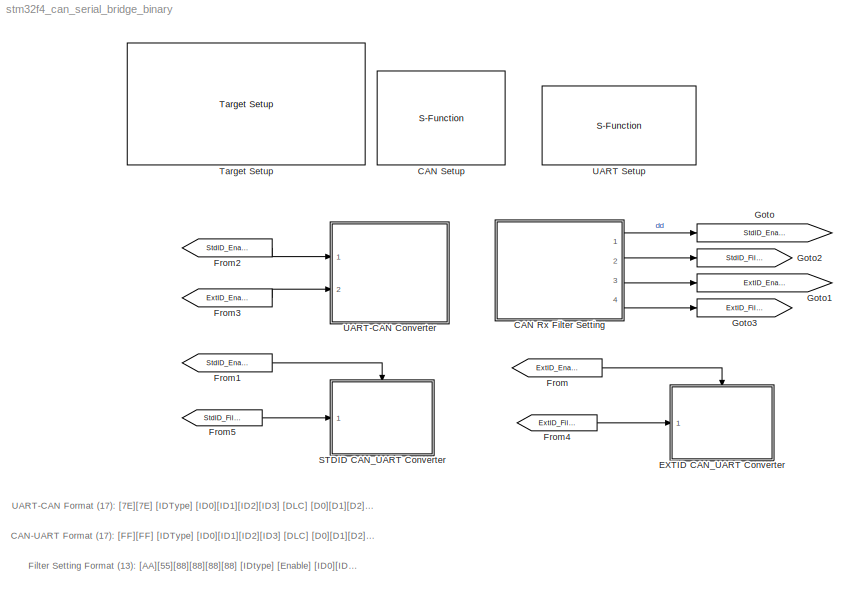
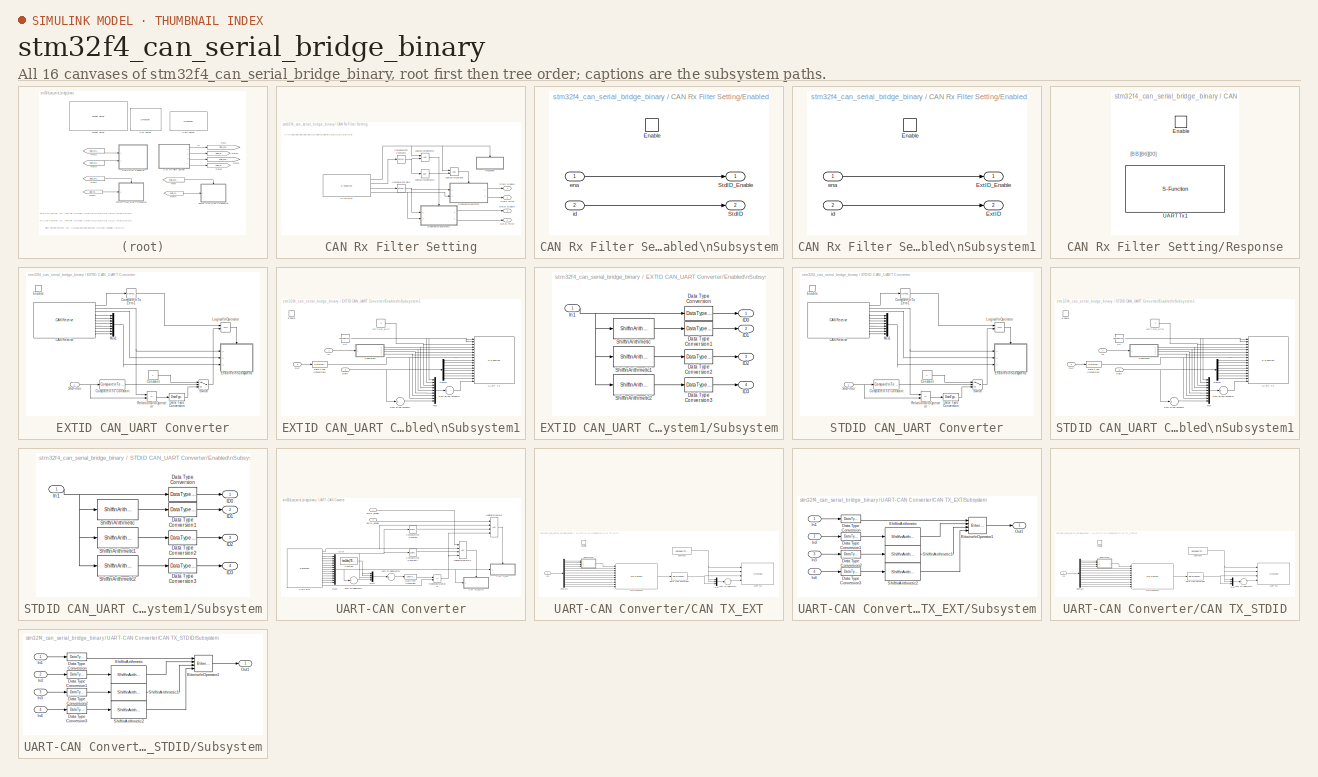
[diagram: thumbnail index - all 16 canvases of the model, root first then tree order]
MODEL stm32f4_can_serial_bridge_binary
KIND model
CONFIG PreLoadFcn = waijung.modelPreload; % Required for working with Waijung Blockset. Do not remove.
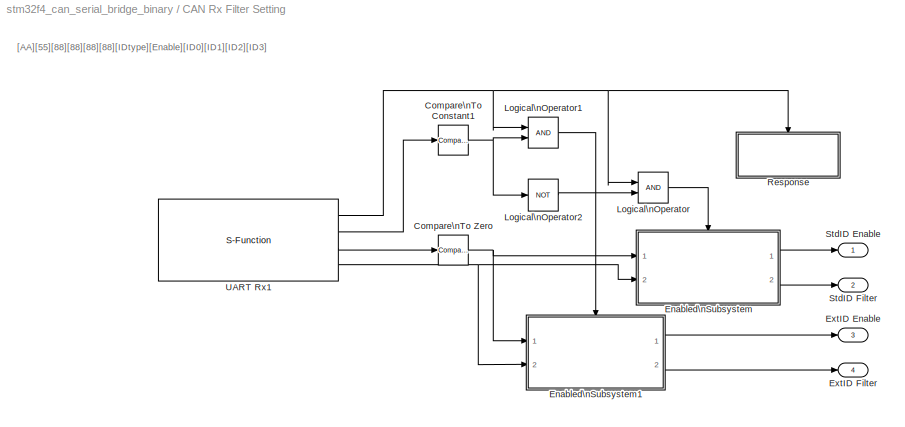
BLOCK [SubSystem] CAN Rx Filter Setting
  FunctionWithSeparateData = off
  MaskHideContents = off
  MinAlgLoopOccurrences = off
  Opaque = off
  Ports = [0, 4]
  PropExecContextOutsideSubsystem = off
  RTWSystemCode = Auto
  RequestExecContextInheritance = off
BLOCK [Reference] CAN Rx Filter Setting/Compare\nTo Constant1  REF=simulink/Logic and Bit\nOperations/Compare\nTo Constant
  FunctionWithSeparateData = off
  LogicOutDataTypeMode = uint8
  Ports = [1, 1]
  RTWMemSecDataConstants = Inherit from model
  RTWMemSecDataInternal = Inherit from model
  RTWMemSecDataParameters = Inherit from model
  RTWMemSecFuncExecute = Inherit from model
  RTWMemSecFuncInitTerm = Inherit from model
  ShowPortLabels = FromPortIcon
  SourceBlock = simulink/Logic and Bit\nOperations/Compare\nTo Constant
  SourceType = Compare To Constant
  SystemSampleTime = -1
  ZeroCross = off
  const = 0
  relop = ==
BLOCK [Reference] CAN Rx Filter Setting/Compare\nTo Zero  REF=simulink/Logic and Bit\nOperations/Compare\nTo Zero
  FunctionWithSeparateData = off
  LogicOutDataTypeMode = uint8
  Ports = [1, 1]
  RTWMemSecDataConstants = Inherit from model
  RTWMemSecDataInternal = Inherit from model
  RTWMemSecDataParameters = Inherit from model
  RTWMemSecFuncExecute = Inherit from model
  RTWMemSecFuncInitTerm = Inherit from model
  ShowPortLabels = FromPortIcon
  SourceBlock = simulink/Logic and Bit\nOperations/Compare\nTo Zero
  SourceType = Compare To Zero
  SystemSampleTime = -1
  ZeroCross = off
  relop = ~=
BLOCK [SubSystem] CAN Rx Filter Setting/Enabled\nSubsystem
  FunctionWithSeparateData = off
  MaskHideContents = off
  MinAlgLoopOccurrences = off
  Opaque = off
  Ports = [2, 2, 1]
  PropExecContextOutsideSubsystem = off
  RTWSystemCode = Auto
  RequestExecContextInheritance = off
  TreatAsAtomicUnit = on
BLOCK [EnablePort] CAN Rx Filter Setting/Enabled\nSubsystem/Enable
  Ports = []
BLOCK [Outport] CAN Rx Filter Setting/Enabled\nSubsystem/StdID
  IconDisplay = Port number
  InitialOutput = 2^32-1
  OutDataType = fixdt(1, 16)
  OutScaling = 2^0
  Port = 2
BLOCK [Outport] CAN Rx Filter Setting/Enabled\nSubsystem/StdID_Enable
  IconDisplay = Port number
  InitialOutput = 0
  OutDataType = fixdt(1, 16)
  OutScaling = 2^0
BLOCK [Inport] CAN Rx Filter Setting/Enabled\nSubsystem/ena
  IconDisplay = Port number
  OutDataType = fixdt(1, 16)
  OutScaling = 2^0
BLOCK [Inport] CAN Rx Filter Setting/Enabled\nSubsystem/id
  IconDisplay = Port number
  OutDataType = fixdt(1, 16)
  OutScaling = 2^0
  Port = 2
BLOCK [SubSystem] CAN Rx Filter Setting/Enabled\nSubsystem1
  FunctionWithSeparateData = off
  MaskHideContents = off
  MinAlgLoopOccurrences = off
  Opaque = off
  Ports = [2, 2, 1]
  PropExecContextOutsideSubsystem = off
  RTWSystemCode = Auto
  RequestExecContextInheritance = off
  TreatAsAtomicUnit = on
BLOCK [EnablePort] CAN Rx Filter Setting/Enabled\nSubsystem1/Enable
  Ports = []
BLOCK [Outport] CAN Rx Filter Setting/Enabled\nSubsystem1/ExtID
  IconDisplay = Port number
  InitialOutput = 2^32-1
  OutDataType = fixdt(1, 16)
  OutScaling = 2^0
  Port = 2
BLOCK [Outport] CAN Rx Filter Setting/Enabled\nSubsystem1/ExtID_Enable
  IconDisplay = Port number
  InitialOutput = 0
  OutDataType = fixdt(1, 16)
  OutScaling = 2^0
BLOCK [Inport] CAN Rx Filter Setting/Enabled\nSubsystem1/ena
  IconDisplay = Port number
  OutDataType = fixdt(1, 16)
  OutScaling = 2^0
BLOCK [Inport] CAN Rx Filter Setting/Enabled\nSubsystem1/id
  IconDisplay = Port number
  OutDataType = fixdt(1, 16)
  OutScaling = 2^0
  Port = 2
BLOCK [Outport] CAN Rx Filter Setting/ExtID Enable
  IconDisplay = Port number
  OutDataType = fixdt(1, 16)
  OutScaling = 2^0
  Port = 3
BLOCK [Outport] CAN Rx Filter Setting/ExtID Filter
  IconDisplay = Port number
  OutDataType = fixdt(1, 16)
  OutScaling = 2^0
  Port = 4
BLOCK [Logic] CAN Rx Filter Setting/Logical\nOperator
  AllPortsSameDT = off
  LogicDataType = fixdt(0, 8)
  OutDataTypeMode = boolean
  OutDataTypeStr = boolean
  Ports = [2, 1]
BLOCK [Logic] CAN Rx Filter Setting/Logical\nOperator1
  AllPortsSameDT = off
  LogicDataType = fixdt(0, 8)
  OutDataTypeMode = boolean
  OutDataTypeStr = boolean
  Ports = [2, 1]
BLOCK [Logic] CAN Rx Filter Setting/Logical\nOperator2
  AllPortsSameDT = off
  LogicDataType = fixdt(0, 8)
  Operator = NOT
  OutDataTypeMode = boolean
  OutDataTypeStr = boolean
  Ports = [1, 1]
BLOCK [SubSystem] CAN Rx Filter Setting/Response
  FunctionWithSeparateData = off
  MaskHideContents = off
  MinAlgLoopOccurrences = off
  Opaque = off
  Ports = [0, 0, 1]
  PropExecContextOutsideSubsystem = off
  RTWSystemCode = Auto
  RequestExecContextInheritance = off
  TreatAsAtomicUnit = on
BLOCK [EnablePort] CAN Rx Filter Setting/Response/Enable
  Ports = []
BLOCK [S-Function] CAN Rx Filter Setting/Response/UART Tx1
  EnableBusSupport = off
  FunctionName = stm32f4_usart
  MaskCallbackString = stm32f4_usart_callback('configuration');|stm32f4_usart_callback('uartmodule');|stm32f4_usart_callback('baudrate');||||||stm32f4_usart_callback('flowcontrol');|||stm32f4_usart_callback('advanceoptions');|||stm32f4_usart_callback('transfer');|stm32f4_usart_callback('packetmode');|stm32f4_usart_callback('binheader');|stm32f4_usart_callback('binterminator');|stm32f4_usart_callback('porttype');|stm32f4...<+572ch>  <repeated x8 — deduplicated; at blocks: UART Tx1, UART Rx1, UART Tx, UART Setup>
  MaskDescription = Data type for Ascii format\n%u, %i, %d, %o, %x: uint32\n%e, %g, %f: single\n%c: int8
  MaskDisplay = text(0.95, 0.5, 'Module: USART3_Tx\\nPacket: Binary\\nTransfer: Blocking\\nTs (sec): 0.01','ver','middle','hor','right');
  MaskEnableString = on,on,on,on,on,on,on,on,on,off,off,on,on,on,on,on,on,on,on,on,on,on,on,on,on,on,on,on,on,on,on,on,on,on,on,on,on,on,on,off,off,on,on
  MaskHelp = web(fullfile(waijungdocroot,'stm32f4_usart_tx.htm'), '-browser')
  MaskIconFrame = on
  MaskIconOpaque = on
  MaskIconRotate = none
  MaskIconUnits = normalized
  MaskInitialization = stm32f4_usart_callback('init');
  MaskPortRotate = default
  MaskPromptString = Configuration|UART Module|Baud rate (bps)|Data bits|Parity|Stop bit|Tx Pin|Rx Pin|Hardware flow control|HW Flow control, CTS Pin|HW Flow control, RTS Pin|Advance options|Rx buffer size (bytes)|Tx buffer size (bytes)|Transfer|Packet mode|Binary header (example: '7E 7E')|Binary terminator (example: '03 03')|Number of data port, type DOUBLE|Number of data port, type SINGLE|Number of data port, type I...<+457ch>  <repeated x8 — deduplicated; at blocks: UART Tx1, UART Rx1, UART Tx, UART Setup>
  MaskSelfModifiable = on
  MaskStyleString = popup(Setup|Tx|Rx),popup(1|2|3|4|5|6),edit,popup(8),popup(No|Odd|Even),popup(0.5|1|1.5|2),popup(Not used|A9|B6),popup(Not used|A10|B7),popup(None|RTS|CTS|RTS/CTS),popup(Not used|A11),popup(Not used|A12),checkbox,popup(16|32|64|128|256|512|1024|2048),popup(16|32|64|128|256|512|1024|2048),popup(Blocking|Non-Blocking),popup(Ascii|Binary|String Buffer),edit,edit,edit,edit,edit,edit,edit,edit,edit,edit...<+244ch>  <repeated x7 — deduplicated; at blocks: UART Tx1, UART Rx1, UART Tx>
  MaskTabNameString = ,,,,,,,,,,,,,,,,,,,,,,,,,,,,,,,,,,,,,,,,,,
  MaskToolTipString = on,on,on,on,on,on,on,on,on,on,on,on,on,on,on,on,on,on,on,on,on,on,on,on,on,on,on,on,on,on,on,on,on,on,on,on,on,on,on,on,on,on,on
  MaskTunableValueString = off,off,off,off,off,off,off,off,off,off,off,off,off,off,off,off,off,off,off,off,off,off,off,off,off,off,off,off,off,off,off,off,off,off,off,off,off,off,off,off,off,off,off
  MaskType = stm32f4_usart
  MaskValueString = Tx|3|115200|8|No|1|Not used|Not used|None|Not used|Not used|off|512|512|Blocking|Binary|'BB 66 00'|''|0|0|0|0|0|0|0|0|'value=%d,%f'|CRLF (0x0D 0x0A - \"<path>")|CRLF (0x0D 0x0A - \"<path>")|<empty>||[0 ]|[0]|[3 187  102    0]|[0 ]|0|'value=%d,%f\\r\\n'|[2 13 10]|-1|0.01|CANRxFilterSettingResponseUARTTx1|[ \"dummy\", \"0\", \"*\", \"*\", \"0\", \"*\", \"*\", \"0\", \"*\", \"*\", \"0\", \"*\", \"*...<+135ch>
  MaskVarAliasString = ,,,,,,,,,,,,,,,,,,,,,,,,,,,,,,,,,,,,,,,,,,
  MaskVariables = configuration=&1;uartmodule=&2;baudrate=@3;databits=@4;parity=&5;stopbit=&6;remaptxpin=&7;remaprxpin=&8;flowcontrol=&9;remapctspin=&10;remaprtspin=&11;advanceoptions=@12;rxbuffersize=@13;txbuffersize=@14;transfer=&15;packetmode=&16;binheader=&17;binterminator=&18;porttype_double=@19;porttype_single=@20;porttype_int8=@21;porttype_uint8=@22;porttype_int16=@23;porttype_uint16=@24;porttype_int32=@25;p...<+306ch>  <repeated x8 — deduplicated; at blocks: UART Tx1, UART Rx1, UART Tx, UART Setup>
  MaskVisibilityString = off,on,off,off,off,off,off,off,off,off,off,off,off,off,on,on,on,on,on,on,on,on,on,on,on,on,off,off,off,off,off,off,off,off,off,off,off,off,on,off,off,off,off
  Parameters = configuration,uartmodule,transfer,baudrate,inputtype,outputtype,confstr,binheaderarray,binterminatorarray,asciiheader,asciiterminator,bindatalength,packetmode,varname,sampletime,sampletimestr,blockid  <repeated x8 — deduplicated; at blocks: UART Tx1, UART Rx1, UART Tx, UART Setup>
  Ports = []
  Priority = 1
BLOCK [Outport] CAN Rx Filter Setting/StdID Enable
  IconDisplay = Port number
  OutDataType = fixdt(1, 16)
  OutScaling = 2^0
BLOCK [Outport] CAN Rx Filter Setting/StdID Filter
  IconDisplay = Port number
  OutDataType = fixdt(1, 16)
  OutScaling = 2^0
  Port = 2
BLOCK [S-Function] CAN Rx Filter Setting/UART Rx1
  EnableBusSupport = off
  FunctionName = stm32f4_usart
  MaskDescription = Data type for Ascii format\n%u, %i, %d, %o, %x: uint32\n%e, %g, %f: single\n%c: int8
  MaskDisplay = text(0.05, 0.5, 'Module: USART3_Rx\\nPacket: Binary\\nTransfer: Non-Blocking\\nTs (sec): 0.01','ver','middle','hor','left'); port_label('output', 1,'READY'); port_label('output', 2,'uint8'); port_label('output', 3,'uint8'); port_label('output', 4,'uint32');
  MaskEnableString = on,on,on,on,on,on,on,on,on,off,off,on,on,on,on,on,on,on,on,on,on,on,on,on,on,on,on,on,on,on,on,on,on,on,on,on,on,on,on,off,off,on,on
  MaskHelp = web(fullfile(waijungdocroot,'stm32f4_usart_rx.htm'), '-browser')
  MaskIconFrame = on
  MaskIconOpaque = on
  MaskIconRotate = none
  MaskIconUnits = normalized
  MaskInitialization = stm32f4_usart_callback('init');
  MaskPortRotate = default
  MaskSelfModifiable = on
  MaskTabNameString = ,,,,,,,,,,,,,,,,,,,,,,,,,,,,,,,,,,,,,,,,,,
  MaskToolTipString = on,on,on,on,on,on,on,on,on,on,on,on,on,on,on,on,on,on,on,on,on,on,on,on,on,on,on,on,on,on,on,on,on,on,on,on,on,on,on,on,on,on,on
  MaskTunableValueString = off,off,off,off,off,off,off,off,off,off,off,off,off,off,off,off,off,off,off,off,off,off,off,off,off,off,off,off,off,off,off,off,off,off,off,off,off,off,off,off,off,off,off
  MaskType = stm32f4_usart
  MaskValueString = Rx|3|115200|8|No|1|Not used|Not used|None|Not used|Not used|off|512|512|Non-Blocking|Binary|'AA 55 88 88 88 88'|''|0|0|0|2|0|0|0|1|'value=%d,%f'|CRLF (0x0D 0x0A - \"<path>")|LF (0x0A - \"\\n\")|<empty>||[0]|[4 3  3 3 7]|[6 170   85  136  136  136  136]|[0 ]|6|'value=%d,%f\\r\\n'|[2 13 10]|-1|0.01|CANRxFilterSettingUARTRx1|[ \"dummy\", \"0\", \"*\", \"*\", \"0\", \"*\", \"*\", \"0\", \"*\", \"*\",...<+153ch>
  MaskVarAliasString = ,,,,,,,,,,,,,,,,,,,,,,,,,,,,,,,,,,,,,,,,,,
  MaskVisibilityString = off,on,off,off,off,off,off,off,off,off,off,off,off,off,on,on,on,on,on,on,on,on,on,on,on,on,off,off,off,off,off,off,off,off,off,off,off,off,on,off,off,off,off
  Ports = [0, 4]
  Priority = 1
BLOCK [S-Function] CAN Setup
  EnableBusSupport = off
  FunctionName = stm32f4_can
  MaskCallbackString = |stm32f4_can_callback('canmodule');|stm32f4_can_callback('advance');|stm32f4_can_callback('bitrate_select');||stm32f4_can_callback('timingconf');|stm32f4_can_callback('timingconf');|stm32f4_can_callback('timingconf');|stm32f4_can_callback('timingconf');|stm32f4_can_callback('timingconf');|||stm32f4_can_callback('remaptxpin');|stm32f4_can_callback('remaprxpin');|stm32f4_can_callback('sampletime');|...<+83ch>
  MaskDescription = This block setups CAN Module.\n\nAuto Re-transmission,\n - Enable: The CAN hardware will automatically retransmit the message until it has been \nsuccessfully transmitted according to the CAN standard.\n - Disable: A message will be transmitted only once, independently of the transmission result \n(successful, error or arbitration lost).\n
  MaskDisplay = text(0.5, 0.5, 'CAN1_Setup\\nSpeed (bps): 250000\\nTx/Rx pin: B9/B8','ver','middle','hor','center');
  MaskEnableString = on,on,on,on,on,on,on,on,on,off,off,on,on,on,on,off,off,on,on,on,on,on,on,on,on,on,on,on,on
  MaskHelp = web(fullfile(waijungdocroot,'stm32f4_can_setup.htm'), '-browser')
  MaskIconFrame = on
  MaskIconOpaque = on
  MaskIconRotate = none
  MaskIconUnits = normalized
  MaskInitialization = stm32f4_can_callback('init');
  MaskPortRotate = default
  MaskPromptString = Configuration|CAN Module|Advance configuration|Baud rate (bps)|Resync Jump Width (SJW)|Bit segment 1 (BS1) + PROP_SEG|Bit segment 2 (BS2)|Adjust|Baud rate prescaler (BRP)|Baud rate (bps)|Time Quantum (Second), tq|Auto Re-transmission|CAN Tx pin|CAN Rx pin|Sample time (sec)|Compiled sample time (sec) in string|BlockID|Input port|Input port label|Output port|Output port label|Compatibility (Reserved...<+125ch>
  MaskSelfModifiable = on
  MaskStyleString = popup(Setup),popup(1|2),checkbox,popup(125000|250000|500000|1000000),popup(1tq|2tq|3tq|4tq),popup(1tq|2tq|3tq|4tq|5tq|6tq|7tq|8tq|9tq|10tq|11tq|12tq|13tq|14tq|15tq|16tq),popup(1tq|2tq|3tq|4tq|5tq|6tq|7tq|8tq),popup(Prescaler|Baudrate),edit,edit,edit,popup(Enable|Disable),popup(Not used|A12|B9|D1|H13),popup(Not used|A11|B8|D0|I9),edit,edit,edit,edit,edit,edit,edit,edit,edit,edit,edit,edit,edit,edit...<+5ch>
  MaskTabNameString = ,,,,,,,,,,,,,,,,,,,,,,,,,,,,
  MaskToolTipString = on,on,on,on,on,on,on,on,on,on,on,on,on,on,on,on,on,on,on,on,on,on,on,on,on,on,on,on,on
  MaskTunableValueString = off,off,off,off,off,off,off,off,off,off,off,off,off,off,off,off,off,off,off,off,off,off,off,off,off,off,off,off,off
  MaskType = stm32f4_can
  MaskValueString = Setup|1|off|250000|1tq|14tq|6tq|Prescaler|8|250000|1.9048e-007|Enable|B9|B8|inf|0.01|CANSetup|[]|{}|[]|{}|0|[\"250000\",\"8\",\"B\",\"9\",\"B\",\"8\",\"1tq\",\"14tq\",\"6tq\",\"DISABLE\"]|8|B|9|B|8|1
  MaskVarAliasString = ,,,,,,,,,,,,,,,,,,,,,,,,,,,,
  MaskVariables = conf=&1;canmodule=&2;advance=&3;bitrate_select=&4;sjw=&5;bs1=&6;bs2=&7;timingconf=&8;brp=@9;bitrate=@10;tq=&11;autoretransmission=&12;remaptxpin=&13;remaprxpin=&14;sampletime=@15;sampletimestr=&16;blockid=&17;inputarray=@18;inputlabelarray=&19;outputarray=@20;outputlabelarray=&21;compat=&22;confstr=&23;presc=&24;txportstr=&25;txpinstr=&26;rxportstr=&27;rxpinstr=&28;lastmodule=&29;
  MaskVisibilityString = off,on,on,on,off,off,off,off,off,off,off,on,on,on,on,off,off,off,off,off,off,off,off,off,off,off,off,off,off
  Parameters = conf,canmodule,0,inputarray,outputarray,'','',confstr,sampletime,sampletimestr,blockid
  Ports = []
BLOCK [SubSystem] EXTID CAN_UART Converter
  FunctionWithSeparateData = off
  MaskHideContents = off
  MinAlgLoopOccurrences = off
  Opaque = off
  Ports = [1, 0, 1]
  PropExecContextOutsideSubsystem = off
  RTWSystemCode = Auto
  RequestExecContextInheritance = off
BLOCK [Reference] EXTID CAN_UART Converter/CAN Receive  REF=stm32f4_canbus_lib/CAN Receive
  Ports = [0, 11]
  SourceBlock = stm32f4_canbus_lib/CAN Receive
  SourceType = stm32f4_can
  blockid = EXTIDCAN_UARTConverterCANReceive
  buffersize = 8
  canmodule = 1
  compat = 0
  conf = Rx
  confstr = [\"Extended\",\"Mask\",\"0\",\"0\",\"on\",\"uint8\",\"uint8\",\"uint8\",\"uint8\",\"uint8\",\"uint8\",\"uint8\",\"uint8\",\"8\",\"0\",\"4\",\"0\",\"4\"]
  data0type = uint8
  data1type = uint8
  data2type = uint8
  data3type = uint8
  data4type = uint8
  data5type = uint8
  data6type = uint8
  data7type = uint8
  datatype = single
  enableisr = off
  filtertype = Mask
  id = 0
  idmask = 0
  idtype = Extended
  inputarray = []
  inputlabelarray = {}
  outputarray = [ 5, 7, 3, 3, 3, 3, 3, 3, 3, 3, 3]
  outputlabelarray = { 'Msg Pending','ID','DLC', 'D0 (uint8)', 'D1 (uint8)', 'D2 (uint8)', 'D3 (uint8)', 'D4 (uint8)', 'D5 (uint8)', 'D6 (uint8)', 'D7 (uint8)' }
  sampletime = inf
  sampletimestr = 0.01
  usedlc = on
BLOCK [Reference] EXTID CAN_UART Converter/Compare\nTo Constant  REF=simulink/Logic and Bit\nOperations/Compare\nTo Constant
  FunctionWithSeparateData = off
  LogicOutDataTypeMode = uint8
  Ports = [1, 1]
  RTWMemSecDataConstants = Inherit from model
  RTWMemSecDataInternal = Inherit from model
  RTWMemSecDataParameters = Inherit from model
  RTWMemSecFuncExecute = Inherit from model
  RTWMemSecFuncInitTerm = Inherit from model
  ShowPortLabels = FromPortIcon
  SourceBlock = simulink/Logic and Bit\nOperations/Compare\nTo Constant
  SourceType = Compare To Constant
  SystemSampleTime = -1
  ZeroCross = off
  const = 2^32-1
  relop = ==
BLOCK [Reference] EXTID CAN_UART Converter/Compare\nTo Zero1  REF=simulink/Logic and Bit\nOperations/Compare\nTo Zero
  FunctionWithSeparateData = off
  LogicOutDataTypeMode = uint8
  Ports = [1, 1]
  RTWMemSecDataConstants = Inherit from model
  RTWMemSecDataInternal = Inherit from model
  RTWMemSecDataParameters = Inherit from model
  RTWMemSecFuncExecute = Inherit from model
  RTWMemSecFuncInitTerm = Inherit from model
  ShowPortLabels = FromPortIcon
  SourceBlock = simulink/Logic and Bit\nOperations/Compare\nTo Zero
  SourceType = Compare To Zero
  SystemSampleTime = -1
  ZeroCross = off
  relop = ~=
BLOCK [Constant] EXTID CAN_UART Converter/Constant
  OutDataType = fixdt(1, 16)
  OutDataTypeMode = uint8
  OutDataTypeStr = uint8
  OutScaling = 2^0
BLOCK [DataTypeConversion] EXTID CAN_UART Converter/Data Type Conversion
  OutDataType = fixdt(1, 16)
  OutDataTypeMode = uint8
  OutDataTypeStr = uint8
  OutScaling = 2^0
  RndMeth = Floor
  SaturateOnIntegerOverflow = off
BLOCK [EnablePort] EXTID CAN_UART Converter/Enable
  Ports = []
BLOCK [SubSystem] EXTID CAN_UART Converter/Enabled\nSubsystem1
  FunctionWithSeparateData = off
  MaskHideContents = off
  MinAlgLoopOccurrences = off
  Opaque = off
  Ports = [3, 0, 1]
  PropExecContextOutsideSubsystem = off
  RTWSystemCode = Auto
  RequestExecContextInheritance = off
  TreatAsAtomicUnit = on
BLOCK [Inport] EXTID CAN_UART Converter/Enabled\nSubsystem1/DLC
  IconDisplay = Port number
  OutDataType = fixdt(1, 16)
  OutScaling = 2^0
  Port = 2
BLOCK [Inport] EXTID CAN_UART Converter/Enabled\nSubsystem1/Data
  IconDisplay = Port number
  OutDataType = fixdt(1, 16)
  OutScaling = 2^0
  Port = 3
BLOCK [DataTypeConversion] EXTID CAN_UART Converter/Enabled\nSubsystem1/Data Type Conversion1
  OutDataType = fixdt(1, 16)
  OutScaling = 2^0
  RndMeth = Floor
  SaturateOnIntegerOverflow = off
BLOCK [Demux] EXTID CAN_UART Converter/Enabled\nSubsystem1/Demux
  DisplayOption = bar
  Outputs = 8
  Ports = [1, 8]
BLOCK [EnablePort] EXTID CAN_UART Converter/Enabled\nSubsystem1/Enable
  Ports = []
BLOCK [Constant] EXTID CAN_UART Converter/Enabled\nSubsystem1/FF
  OutDataType = fixdt(1, 16)
  OutDataTypeMode = uint8
  OutDataTypeStr = uint8
  OutScaling = 2^0
  Value = hex2dec('FF')
BLOCK [Inport] EXTID CAN_UART Converter/Enabled\nSubsystem1/ID
  IconDisplay = Port number
  OutDataType = fixdt(1, 16)
  OutScaling = 2^0
BLOCK [Constant] EXTID CAN_UART Converter/Enabled\nSubsystem1/IDTYPE_EXT
  OutDataType = fixdt(1, 16)
  OutDataTypeMode = uint8
  OutDataTypeStr = uint8
  OutScaling = 2^0
  Value = 0
BLOCK [Mux] EXTID CAN_UART Converter/Enabled\nSubsystem1/Mux
  DisplayOption = bar
  Inputs = 9
  Ports = [9, 1]
BLOCK [SubSystem] EXTID CAN_UART Converter/Enabled\nSubsystem1/Subsystem
  FunctionWithSeparateData = off
  MaskHideContents = off
  MinAlgLoopOccurrences = off
  Opaque = off
  Ports = [1, 4]
  PropExecContextOutsideSubsystem = off
  RTWSystemCode = Auto
  RequestExecContextInheritance = off
BLOCK [DataTypeConversion] EXTID CAN_UART Converter/Enabled\nSubsystem1/Subsystem/Data Type Conversion
  OutDataType = fixdt(1, 16)
  OutDataTypeMode = uint8
  OutDataTypeStr = uint8
  OutScaling = 2^0
  RndMeth = Floor
  SaturateOnIntegerOverflow = off
BLOCK [DataTypeConversion] EXTID CAN_UART Converter/Enabled\nSubsystem1/Subsystem/Data Type Conversion1
  OutDataType = fixdt(1, 16)
  OutDataTypeMode = uint8
  OutDataTypeStr = uint8
  OutScaling = 2^0
  RndMeth = Floor
  SaturateOnIntegerOverflow = off
BLOCK [DataTypeConversion] EXTID CAN_UART Converter/Enabled\nSubsystem1/Subsystem/Data Type Conversion2
  OutDataType = fixdt(1, 16)
  OutDataTypeMode = uint8
  OutDataTypeStr = uint8
  OutScaling = 2^0
  RndMeth = Floor
  SaturateOnIntegerOverflow = off
BLOCK [DataTypeConversion] EXTID CAN_UART Converter/Enabled\nSubsystem1/Subsystem/Data Type Conversion3
  OutDataType = fixdt(1, 16)
  OutDataTypeMode = uint8
  OutDataTypeStr = uint8
  OutScaling = 2^0
  RndMeth = Floor
  SaturateOnIntegerOverflow = off
BLOCK [Outport] EXTID CAN_UART Converter/Enabled\nSubsystem1/Subsystem/ID0
  IconDisplay = Port number
  OutDataType = fixdt(1, 16)
  OutScaling = 2^0
BLOCK [Outport] EXTID CAN_UART Converter/Enabled\nSubsystem1/Subsystem/ID1
  IconDisplay = Port number
  OutDataType = fixdt(1, 16)
  OutScaling = 2^0
  Port = 2
BLOCK [Outport] EXTID CAN_UART Converter/Enabled\nSubsystem1/Subsystem/ID2
  IconDisplay = Port number
  OutDataType = fixdt(1, 16)
  OutScaling = 2^0
  Port = 3
BLOCK [Outport] EXTID CAN_UART Converter/Enabled\nSubsystem1/Subsystem/ID3
  IconDisplay = Port number
  OutDataType = fixdt(1, 16)
  OutScaling = 2^0
  Port = 4
BLOCK [Inport] EXTID CAN_UART Converter/Enabled\nSubsystem1/Subsystem/In1
  IconDisplay = Port number
  OutDataType = fixdt(1, 16)
  OutScaling = 2^0
BLOCK [Reference] EXTID CAN_UART Converter/Enabled\nSubsystem1/Subsystem/Shift\nArithmetic  REF=simulink/Logic and Bit\nOperations/Shift\nArithmetic
  FunctionWithSeparateData = off
  Ports = [1, 1]
  RTWMemSecDataConstants = Inherit from model
  RTWMemSecDataInternal = Inherit from model
  RTWMemSecDataParameters = Inherit from model
  RTWMemSecFuncExecute = Inherit from model
  RTWMemSecFuncInitTerm = Inherit from model
  ShowPortLabels = FromPortIcon
  SourceBlock = simulink/Logic and Bit\nOperations/Shift\nArithmetic
  SourceType = Shift Arithmetic
  SystemSampleTime = -1
  nBinPtShiftRight = 0
  nBitShiftRight = 8
BLOCK [Reference] EXTID CAN_UART Converter/Enabled\nSubsystem1/Subsystem/Shift\nArithmetic1  REF=simulink/Logic and Bit\nOperations/Shift\nArithmetic
  FunctionWithSeparateData = off
  Ports = [1, 1]
  RTWMemSecDataConstants = Inherit from model
  RTWMemSecDataInternal = Inherit from model
  RTWMemSecDataParameters = Inherit from model
  RTWMemSecFuncExecute = Inherit from model
  RTWMemSecFuncInitTerm = Inherit from model
  ShowPortLabels = FromPortIcon
  SourceBlock = simulink/Logic and Bit\nOperations/Shift\nArithmetic
  SourceType = Shift Arithmetic
  SystemSampleTime = -1
  nBinPtShiftRight = 0
  nBitShiftRight = 16
BLOCK [Reference] EXTID CAN_UART Converter/Enabled\nSubsystem1/Subsystem/Shift\nArithmetic2  REF=simulink/Logic and Bit\nOperations/Shift\nArithmetic
  FunctionWithSeparateData = off
  Ports = [1, 1]
  RTWMemSecDataConstants = Inherit from model
  RTWMemSecDataInternal = Inherit from model
  RTWMemSecDataParameters = Inherit from model
  RTWMemSecFuncExecute = Inherit from model
  RTWMemSecFuncInitTerm = Inherit from model
  ShowPortLabels = FromPortIcon
  SourceBlock = simulink/Logic and Bit\nOperations/Shift\nArithmetic
  SourceType = Shift Arithmetic
  SystemSampleTime = -1
  nBinPtShiftRight = 0
  nBitShiftRight = 24
BLOCK [Sum] EXTID CAN_UART Converter/Enabled\nSubsystem1/Sum of\nElements
  InputSameDT = off
  Inputs = +
  OutDataType = fixdt(1, 16)
  OutDataTypeMode = Inherit via internal rule
  OutDataTypeStr = Inherit: Inherit via internal rule
  OutScaling = 2^-10
  Ports = [1, 1]
  SaturateOnIntegerOverflow = off
BLOCK [Sum] EXTID CAN_UART Converter/Enabled\nSubsystem1/Sum of\nElements1
  InputSameDT = off
  Inputs = +
  OutDataType = fixdt(1, 16)
  OutDataTypeMode = Inherit via internal rule
  OutDataTypeStr = Inherit: Inherit via internal rule
  OutScaling = 2^-10
  Ports = [1, 1]
  SaturateOnIntegerOverflow = off
BLOCK [S-Function] EXTID CAN_UART Converter/Enabled\nSubsystem1/UART Tx
  EnableBusSupport = off
  FunctionName = stm32f4_usart
  MaskDescription = Data type for Ascii format\n%u, %i, %d, %o, %x: uint32\n%e, %g, %f: single\n%c: int8
  MaskDisplay = text(0.95, 0.5, 'Module: USART3_Tx\\nPacket: Binary\\nTransfer: Blocking\\nTs (sec): 0.01','ver','middle','hor','right'); port_label('input', 1,'uint8'); port_label('input', 2,'uint8'); port_label('input', 3,'uint8'); port_label('input', 4,'uint8'); port_label('input', 5,'uint8'); port_label('input', 6,'uint8'); port_label('input', 7,'uint8'); port_label('input', 8,'uint8'); port_label('input', 9,...<+273ch>
  MaskEnableString = on,on,on,on,on,on,on,on,on,off,off,on,on,on,on,on,on,on,on,on,on,on,on,on,on,on,on,on,on,on,on,on,on,on,on,on,on,on,on,off,off,on,on
  MaskHelp = web(fullfile(waijungdocroot,'stm32f4_usart_tx.htm'), '-browser')
  MaskIconFrame = on
  MaskIconOpaque = on
  MaskIconRotate = none
  MaskIconUnits = normalized
  MaskInitialization = stm32f4_usart_callback('init');
  MaskPortRotate = default
  MaskSelfModifiable = on
  MaskTabNameString = ,,,,,,,,,,,,,,,,,,,,,,,,,,,,,,,,,,,,,,,,,,
  MaskToolTipString = on,on,on,on,on,on,on,on,on,on,on,on,on,on,on,on,on,on,on,on,on,on,on,on,on,on,on,on,on,on,on,on,on,on,on,on,on,on,on,on,on,on,on
  MaskTunableValueString = off,off,off,off,off,off,off,off,off,off,off,off,off,off,off,off,off,off,off,off,off,off,off,off,off,off,off,off,off,off,off,off,off,off,off,off,off,off,off,off,off,off,off
  MaskType = stm32f4_usart
  MaskValueString = Tx|3|115200|8|No|1|Not used|Not used|None|Not used|Not used|off|512|512|Blocking|Binary|''|''|0|0|0|17|0|0|0|0|'value=%d,%f'|CRLF (0x0D 0x0A - \"<path>")|CRLF (0x0D 0x0A - \"<path>")|<empty>||[17  3 3 3 3 3 3 3 3 3 3 3 3 3 3 3 3 3]|[0]|[0 ]|[0 ]|17|'value=%d,%f\\r\\n'|[2 13 10]|-1|0.01|EXTIDCAN_UARTConverterEnabledSubsystem1UARTTx|[ \"dummy\", \"0\", \"*\", \"*\", \"0\", \"*\", \"*\", \"0\", \"*...<+163ch>
  MaskVarAliasString = ,,,,,,,,,,,,,,,,,,,,,,,,,,,,,,,,,,,,,,,,,,
  MaskVisibilityString = off,on,off,off,off,off,off,off,off,off,off,off,off,off,on,on,on,on,on,on,on,on,on,on,on,on,off,off,off,off,off,off,off,off,off,off,off,off,on,off,off,off,off
  Ports = [17]
  Priority = 1
BLOCK [Logic] EXTID CAN_UART Converter/Logical\nOperator
  AllPortsSameDT = off
  LogicDataType = fixdt(0, 8)
  OutDataTypeMode = boolean
  OutDataTypeStr = boolean
  Ports = [2, 1]
BLOCK [Mux] EXTID CAN_UART Converter/Mux1
  DisplayOption = bar
  Inputs = 8
  Ports = [8, 1]
BLOCK [RelationalOperator] EXTID CAN_UART Converter/Relational\nOperator
  InputSameDT = off
  LogicDataType = fixdt(0, 8)
  LogicOutDataTypeMode = boolean
  Operator = ==
  OutDataTypeStr = boolean
BLOCK [Inport] EXTID CAN_UART Converter/StdFilter
  IconDisplay = Port number
  OutDataType = fixdt(1, 16)
  OutScaling = 2^0
BLOCK [Switch] EXTID CAN_UART Converter/Switch
  Criteria = u2 ~= 0
  InputSameDT = off
  OutDataType = fixdt(1, 16)
  OutScaling = 2^0
  SaturateOnIntegerOverflow = off
BLOCK [From] From
  GotoTag = ExtID_Enable
BLOCK [From] From1
  GotoTag = StdID_Enable
BLOCK [From] From2
  GotoTag = StdID_Enable
BLOCK [From] From3
  GotoTag = ExtID_Enable
BLOCK [From] From4
  GotoTag = ExtID_Filter
BLOCK [From] From5
  GotoTag = StdID_Filter
BLOCK [Goto] Goto
  GotoTag = StdID_Enable
  TagVisibility = local
BLOCK [Goto] Goto1
  GotoTag = ExtID_Enable
  TagVisibility = local
BLOCK [Goto] Goto2
  GotoTag = StdID_Filter
  TagVisibility = local
BLOCK [Goto] Goto3
  GotoTag = ExtID_Filter
  TagVisibility = local
BLOCK [SubSystem] STDID CAN_UART Converter
  FunctionWithSeparateData = off
  MaskHideContents = off
  MinAlgLoopOccurrences = off
  Opaque = off
  Ports = [1, 0, 1]
  PropExecContextOutsideSubsystem = off
  RTWSystemCode = Auto
  RequestExecContextInheritance = off
BLOCK [Reference] STDID CAN_UART Converter/CAN Receive  REF=stm32f4_canbus_lib/CAN Receive
  Ports = [0, 11]
  SourceBlock = stm32f4_canbus_lib/CAN Receive
  SourceType = stm32f4_can
  blockid = STDIDCAN_UARTConverterCANReceive
  buffersize = 8
  canmodule = 1
  compat = 0
  conf = Rx
  confstr = [\"Standard\",\"Mask\",\"0\",\"0\",\"on\",\"uint8\",\"uint8\",\"uint8\",\"uint8\",\"uint8\",\"uint8\",\"uint8\",\"uint8\",\"8\",\"0\",\"0\",\"0\",\"4\"]
  data0type = uint8
  data1type = uint8
  data2type = uint8
  data3type = uint8
  data4type = uint8
  data5type = uint8
  data6type = uint8
  data7type = uint8
  datatype = single
  enableisr = off
  filtertype = Mask
  id = 0
  idmask = 0
  idtype = Standard
  inputarray = []
  inputlabelarray = {}
  outputarray = [ 5, 7, 3, 3, 3, 3, 3, 3, 3, 3, 3]
  outputlabelarray = { 'Msg Pending','ID','DLC', 'D0 (uint8)', 'D1 (uint8)', 'D2 (uint8)', 'D3 (uint8)', 'D4 (uint8)', 'D5 (uint8)', 'D6 (uint8)', 'D7 (uint8)' }
  sampletime = inf
  sampletimestr = 0.01
  usedlc = on
BLOCK [Reference] STDID CAN_UART Converter/Compare\nTo Constant  REF=simulink/Logic and Bit\nOperations/Compare\nTo Constant
  FunctionWithSeparateData = off
  LogicOutDataTypeMode = uint8
  Ports = [1, 1]
  RTWMemSecDataConstants = Inherit from model
  RTWMemSecDataInternal = Inherit from model
  RTWMemSecDataParameters = Inherit from model
  RTWMemSecFuncExecute = Inherit from model
  RTWMemSecFuncInitTerm = Inherit from model
  ShowPortLabels = FromPortIcon
  SourceBlock = simulink/Logic and Bit\nOperations/Compare\nTo Constant
  SourceType = Compare To Constant
  SystemSampleTime = -1
  ZeroCross = off
  const = 2^32-1
  relop = ==
BLOCK [Reference] STDID CAN_UART Converter/Compare\nTo Zero1  REF=simulink/Logic and Bit\nOperations/Compare\nTo Zero
  FunctionWithSeparateData = off
  LogicOutDataTypeMode = uint8
  Ports = [1, 1]
  RTWMemSecDataConstants = Inherit from model
  RTWMemSecDataInternal = Inherit from model
  RTWMemSecDataParameters = Inherit from model
  RTWMemSecFuncExecute = Inherit from model
  RTWMemSecFuncInitTerm = Inherit from model
  ShowPortLabels = FromPortIcon
  SourceBlock = simulink/Logic and Bit\nOperations/Compare\nTo Zero
  SourceType = Compare To Zero
  SystemSampleTime = -1
  ZeroCross = off
  relop = ~=
BLOCK [Constant] STDID CAN_UART Converter/Constant
  OutDataType = fixdt(1, 16)
  OutDataTypeMode = uint8
  OutDataTypeStr = uint8
  OutScaling = 2^0
BLOCK [DataTypeConversion] STDID CAN_UART Converter/Data Type Conversion
  OutDataType = fixdt(1, 16)
  OutDataTypeMode = uint8
  OutDataTypeStr = uint8
  OutScaling = 2^0
  RndMeth = Floor
  SaturateOnIntegerOverflow = off
BLOCK [EnablePort] STDID CAN_UART Converter/Enable
  Ports = []
BLOCK [SubSystem] STDID CAN_UART Converter/Enabled\nSubsystem1
  FunctionWithSeparateData = off
  MaskHideContents = off
  MinAlgLoopOccurrences = off
  Opaque = off
  Ports = [3, 0, 1]
  PropExecContextOutsideSubsystem = off
  RTWSystemCode = Auto
  RequestExecContextInheritance = off
  TreatAsAtomicUnit = on
BLOCK [Inport] STDID CAN_UART Converter/Enabled\nSubsystem1/DLC
  IconDisplay = Port number
  OutDataType = fixdt(1, 16)
  OutScaling = 2^0
  Port = 2
BLOCK [Inport] STDID CAN_UART Converter/Enabled\nSubsystem1/Data
  IconDisplay = Port number
  OutDataType = fixdt(1, 16)
  OutScaling = 2^0
  Port = 3
BLOCK [DataTypeConversion] STDID CAN_UART Converter/Enabled\nSubsystem1/Data Type Conversion1
  OutDataType = fixdt(1, 16)
  OutScaling = 2^0
  RndMeth = Floor
  SaturateOnIntegerOverflow = off
BLOCK [Demux] STDID CAN_UART Converter/Enabled\nSubsystem1/Demux
  DisplayOption = bar
  Outputs = 8
  Ports = [1, 8]
BLOCK [EnablePort] STDID CAN_UART Converter/Enabled\nSubsystem1/Enable
  Ports = []
BLOCK [Constant] STDID CAN_UART Converter/Enabled\nSubsystem1/FF
  OutDataType = fixdt(1, 16)
  OutDataTypeMode = uint8
  OutDataTypeStr = uint8
  OutScaling = 2^0
  Value = hex2dec('FF')
BLOCK [Inport] STDID CAN_UART Converter/Enabled\nSubsystem1/ID
  IconDisplay = Port number
  OutDataType = fixdt(1, 16)
  OutScaling = 2^0
BLOCK [Constant] STDID CAN_UART Converter/Enabled\nSubsystem1/IDTYPE_STD
  OutDataType = fixdt(1, 16)
  OutDataTypeMode = uint8
  OutDataTypeStr = uint8
  OutScaling = 2^0
BLOCK [Mux] STDID CAN_UART Converter/Enabled\nSubsystem1/Mux
  DisplayOption = bar
  Inputs = 9
  Ports = [9, 1]
BLOCK [SubSystem] STDID CAN_UART Converter/Enabled\nSubsystem1/Subsystem
  FunctionWithSeparateData = off
  MaskHideContents = off
  MinAlgLoopOccurrences = off
  Opaque = off
  Ports = [1, 4]
  PropExecContextOutsideSubsystem = off
  RTWSystemCode = Auto
  RequestExecContextInheritance = off
BLOCK [DataTypeConversion] STDID CAN_UART Converter/Enabled\nSubsystem1/Subsystem/Data Type Conversion
  OutDataType = fixdt(1, 16)
  OutDataTypeMode = uint8
  OutDataTypeStr = uint8
  OutScaling = 2^0
  RndMeth = Floor
  SaturateOnIntegerOverflow = off
BLOCK [DataTypeConversion] STDID CAN_UART Converter/Enabled\nSubsystem1/Subsystem/Data Type Conversion1
  OutDataType = fixdt(1, 16)
  OutDataTypeMode = uint8
  OutDataTypeStr = uint8
  OutScaling = 2^0
  RndMeth = Floor
  SaturateOnIntegerOverflow = off
BLOCK [DataTypeConversion] STDID CAN_UART Converter/Enabled\nSubsystem1/Subsystem/Data Type Conversion2
  OutDataType = fixdt(1, 16)
  OutDataTypeMode = uint8
  OutDataTypeStr = uint8
  OutScaling = 2^0
  RndMeth = Floor
  SaturateOnIntegerOverflow = off
BLOCK [DataTypeConversion] STDID CAN_UART Converter/Enabled\nSubsystem1/Subsystem/Data Type Conversion3
  OutDataType = fixdt(1, 16)
  OutDataTypeMode = uint8
  OutDataTypeStr = uint8
  OutScaling = 2^0
  RndMeth = Floor
  SaturateOnIntegerOverflow = off
BLOCK [Outport] STDID CAN_UART Converter/Enabled\nSubsystem1/Subsystem/ID0
  IconDisplay = Port number
  OutDataType = fixdt(1, 16)
  OutScaling = 2^0
BLOCK [Outport] STDID CAN_UART Converter/Enabled\nSubsystem1/Subsystem/ID1
  IconDisplay = Port number
  OutDataType = fixdt(1, 16)
  OutScaling = 2^0
  Port = 2
BLOCK [Outport] STDID CAN_UART Converter/Enabled\nSubsystem1/Subsystem/ID2
  IconDisplay = Port number
  OutDataType = fixdt(1, 16)
  OutScaling = 2^0
  Port = 3
BLOCK [Outport] STDID CAN_UART Converter/Enabled\nSubsystem1/Subsystem/ID3
  IconDisplay = Port number
  OutDataType = fixdt(1, 16)
  OutScaling = 2^0
  Port = 4
BLOCK [Inport] STDID CAN_UART Converter/Enabled\nSubsystem1/Subsystem/In1
  IconDisplay = Port number
  OutDataType = fixdt(1, 16)
  OutScaling = 2^0
BLOCK [Reference] STDID CAN_UART Converter/Enabled\nSubsystem1/Subsystem/Shift\nArithmetic  REF=simulink/Logic and Bit\nOperations/Shift\nArithmetic
  FunctionWithSeparateData = off
  Ports = [1, 1]
  RTWMemSecDataConstants = Inherit from model
  RTWMemSecDataInternal = Inherit from model
  RTWMemSecDataParameters = Inherit from model
  RTWMemSecFuncExecute = Inherit from model
  RTWMemSecFuncInitTerm = Inherit from model
  ShowPortLabels = FromPortIcon
  SourceBlock = simulink/Logic and Bit\nOperations/Shift\nArithmetic
  SourceType = Shift Arithmetic
  SystemSampleTime = -1
  nBinPtShiftRight = 0
  nBitShiftRight = 8
BLOCK [Reference] STDID CAN_UART Converter/Enabled\nSubsystem1/Subsystem/Shift\nArithmetic1  REF=simulink/Logic and Bit\nOperations/Shift\nArithmetic
  FunctionWithSeparateData = off
  Ports = [1, 1]
  RTWMemSecDataConstants = Inherit from model
  RTWMemSecDataInternal = Inherit from model
  RTWMemSecDataParameters = Inherit from model
  RTWMemSecFuncExecute = Inherit from model
  RTWMemSecFuncInitTerm = Inherit from model
  ShowPortLabels = FromPortIcon
  SourceBlock = simulink/Logic and Bit\nOperations/Shift\nArithmetic
  SourceType = Shift Arithmetic
  SystemSampleTime = -1
  nBinPtShiftRight = 0
  nBitShiftRight = 16
BLOCK [Reference] STDID CAN_UART Converter/Enabled\nSubsystem1/Subsystem/Shift\nArithmetic2  REF=simulink/Logic and Bit\nOperations/Shift\nArithmetic
  FunctionWithSeparateData = off
  Ports = [1, 1]
  RTWMemSecDataConstants = Inherit from model
  RTWMemSecDataInternal = Inherit from model
  RTWMemSecDataParameters = Inherit from model
  RTWMemSecFuncExecute = Inherit from model
  RTWMemSecFuncInitTerm = Inherit from model
  ShowPortLabels = FromPortIcon
  SourceBlock = simulink/Logic and Bit\nOperations/Shift\nArithmetic
  SourceType = Shift Arithmetic
  SystemSampleTime = -1
  nBinPtShiftRight = 0
  nBitShiftRight = 24
BLOCK [Sum] STDID CAN_UART Converter/Enabled\nSubsystem1/Sum of\nElements
  InputSameDT = off
  Inputs = +
  OutDataType = fixdt(1, 16)
  OutDataTypeMode = Inherit via internal rule
  OutDataTypeStr = Inherit: Inherit via internal rule
  OutScaling = 2^-10
  Ports = [1, 1]
  SaturateOnIntegerOverflow = off
BLOCK [Sum] STDID CAN_UART Converter/Enabled\nSubsystem1/Sum of\nElements1
  InputSameDT = off
  Inputs = +
  OutDataType = fixdt(1, 16)
  OutDataTypeMode = Inherit via internal rule
  OutDataTypeStr = Inherit: Inherit via internal rule
  OutScaling = 2^-10
  Ports = [1, 1]
  SaturateOnIntegerOverflow = off
BLOCK [S-Function] STDID CAN_UART Converter/Enabled\nSubsystem1/UART Tx
  EnableBusSupport = off
  FunctionName = stm32f4_usart
  MaskDescription = Data type for Ascii format\n%u, %i, %d, %o, %x: uint32\n%e, %g, %f: single\n%c: int8
  MaskDisplay = text(0.95, 0.5, 'Module: USART3_Tx\\nPacket: Binary\\nTransfer: Blocking\\nTs (sec): 0.01','ver','middle','hor','right'); port_label('input', 1,'uint8'); port_label('input', 2,'uint8'); port_label('input', 3,'uint8'); port_label('input', 4,'uint8'); port_label('input', 5,'uint8'); port_label('input', 6,'uint8'); port_label('input', 7,'uint8'); port_label('input', 8,'uint8'); port_label('input', 9,...<+273ch>
  MaskEnableString = on,on,on,on,on,on,on,on,on,off,off,on,on,on,on,on,on,on,on,on,on,on,on,on,on,on,on,on,on,on,on,on,on,on,on,on,on,on,on,off,off,on,on
  MaskHelp = web(fullfile(waijungdocroot,'stm32f4_usart_tx.htm'), '-browser')
  MaskIconFrame = on
  MaskIconOpaque = on
  MaskIconRotate = none
  MaskIconUnits = normalized
  MaskInitialization = stm32f4_usart_callback('init');
  MaskPortRotate = default
  MaskSelfModifiable = on
  MaskTabNameString = ,,,,,,,,,,,,,,,,,,,,,,,,,,,,,,,,,,,,,,,,,,
  MaskToolTipString = on,on,on,on,on,on,on,on,on,on,on,on,on,on,on,on,on,on,on,on,on,on,on,on,on,on,on,on,on,on,on,on,on,on,on,on,on,on,on,on,on,on,on
  MaskTunableValueString = off,off,off,off,off,off,off,off,off,off,off,off,off,off,off,off,off,off,off,off,off,off,off,off,off,off,off,off,off,off,off,off,off,off,off,off,off,off,off,off,off,off,off
  MaskType = stm32f4_usart
  MaskValueString = Tx|3|115200|8|No|1|Not used|Not used|None|Not used|Not used|off|512|512|Blocking|Binary|''|''|0|0|0|17|0|0|0|0|'value=%d,%f'|CRLF (0x0D 0x0A - \"<path>")|CRLF (0x0D 0x0A - \"<path>")|<empty>||[17  3 3 3 3 3 3 3 3 3 3 3 3 3 3 3 3 3]|[0]|[0 ]|[0 ]|17|'value=%d,%f\\r\\n'|[2 13 10]|-1|0.01|STDIDCAN_UARTConverterEnabledSubsystem1UARTTx|[ \"dummy\", \"0\", \"*\", \"*\", \"0\", \"*\", \"*\", \"0\", \"*...<+163ch>
  MaskVarAliasString = ,,,,,,,,,,,,,,,,,,,,,,,,,,,,,,,,,,,,,,,,,,
  MaskVisibilityString = off,on,off,off,off,off,off,off,off,off,off,off,off,off,on,on,on,on,on,on,on,on,on,on,on,on,off,off,off,off,off,off,off,off,off,off,off,off,on,off,off,off,off
  Ports = [17]
  Priority = 1
BLOCK [Logic] STDID CAN_UART Converter/Logical\nOperator
  AllPortsSameDT = off
  LogicDataType = fixdt(0, 8)
  OutDataTypeMode = boolean
  OutDataTypeStr = boolean
  Ports = [2, 1]
BLOCK [Mux] STDID CAN_UART Converter/Mux1
  DisplayOption = bar
  Inputs = 8
  Ports = [8, 1]
BLOCK [RelationalOperator] STDID CAN_UART Converter/Relational\nOperator
  InputSameDT = off
  LogicDataType = fixdt(0, 8)
  LogicOutDataTypeMode = boolean
  Operator = ==
  OutDataTypeStr = boolean
BLOCK [Inport] STDID CAN_UART Converter/StdFilter
  IconDisplay = Port number
  OutDataType = fixdt(1, 16)
  OutScaling = 2^0
BLOCK [Switch] STDID CAN_UART Converter/Switch
  Criteria = u2 ~= 0
  InputSameDT = off
  OutDataType = fixdt(1, 16)
  OutScaling = 2^0
  SaturateOnIntegerOverflow = off
BLOCK [Reference] Target Setup  REF=stm32f4_device_config_lib/Target Setup
  Ports = []
  Priority = 100
  SourceBlock = stm32f4_device_config_lib/Target Setup
  SourceType = stm32f4_target_setup
  assemblercontrolstr = $(patsubst %, -I%, .) -mcpu=cortex-m4 -mthumb -mthumb-interwork -mfloat-abi=hard -mfpu=fpv4-sp-d16 -ffast-math -Wall -Wextra -Ofast -Wa,-amhls=$(<:.s=.lst) -D__STACK_SIZE=$(STACK_SIZE) -D__HEAP_SIZE=$(HEAP_SIZE)
  blockid = TargetSetup
  clockconfig = HSEOSC-8MHz
  compiler = GNU ARM
  compilercontrolstr = $(patsubst %, -I%, .) -mcpu=cortex-m4 -mthumb -mthumb-interwork -mfloat-abi=hard -mfpu=fpv4-sp-d16 -ffast-math -Wall -Wextra -Ofast
  editctrlstr = on
  enableautocompiledownload = on
  execprofile = None
  flashlength = 1024k
  flashorigin = 0x8000000
  fullchiperase = off
  hclk = 168000000
  heapsize = 0x2000
  hseval = 8000000
  lastprofileruart = 3
  linkercontrolstr = -T$(LD_SCRIPT) -g -Wl,-Map=$(MAP),--cref,--no-warn-mismatch -mcpu=cortex-m4 -mthumb -mthumb-interwork -mfloat-abi=hard -mfpu=fpv4-sp-d16 -specs=nosys.specs
  manualsetsampletime = off
  mcu = STM32F417IG (LQFP176)
  mcustr = STM32F417IG
  previous_compiler = GNU ARM
  profilerbaud = 500000
  profilerinitstr = 0.01,168000000,1680000,500000,0
  profilertxpin = D8
  profileruart = 3
  programmerinterface = ST-Link
  ramlength = 128k
  ramorigin = 0x20000000
  runafterdownload = on
  sampletime = 0.01
  showmemoryconfiguration = off
  stacksize = 0x2000
  system_stm32f4xx_c_path = <path>
  systickreloadvalue = 1680000
  useextram = off
BLOCK [S-Function] UART Setup
  EnableBusSupport = off
  FunctionName = stm32f4_usart
  MaskDescription = Default STM32F4DISCOVERY + aMG F4 Connect 2 + aMG USB Converter N2 settings use\n\nUSART3, Tx D8, Rx D9 and USB Serial Converter A.
  MaskDisplay = text(0.5, 0.5, 'Module: USART3_Setup\\nBaud (Bps): 115200\\nDMA Buffer: 512/512\\nTx/Rx Pin: D8/D9','ver','middle','hor','center');
  MaskEnableString = on,on,on,on,on,on,on,on,on,off,off,on,on,on,on,on,on,on,on,on,on,on,on,on,on,on,on,on,on,on,on,on,on,on,on,on,on,on,on,off,off,on,on
  MaskHelp = web(fullfile(waijungdocroot,'stm32f4_usart_setup.htm'), '-browser')
  MaskIconFrame = on
  MaskIconOpaque = on
  MaskIconRotate = none
  MaskIconUnits = normalized
  MaskInitialization = stm32f4_usart_callback('init');
  MaskPortRotate = default
  MaskSelfModifiable = on
  MaskStyleString = popup(Setup|Tx|Rx),popup(1|2|3|4|5|6),edit,popup(8),popup(No|Odd|Even),popup(0.5|1|1.5|2),popup(Not used|B10|C10|D8),popup(Not used|B11|C11|D9),popup(None|RTS|CTS|RTS/CTS),popup(Not used|B13|D11),popup(Not used|B14|D12),checkbox,popup(16|32|64|128|256|512|1024|2048),popup(16|32|64|128|256|512|1024|2048),popup(Blocking|Non-Blocking),popup(Ascii|Binary|String Buffer),edit,edit,edit,edit,edit,edit,ed...<+261ch>
  MaskTabNameString = ,,,,,,,,,,,,,,,,,,,,,,,,,,,,,,,,,,,,,,,,,,
  MaskToolTipString = on,on,on,on,on,on,on,on,on,on,on,on,on,on,on,on,on,on,on,on,on,on,on,on,on,on,on,on,on,on,on,on,on,on,on,on,on,on,on,on,on,on,on
  MaskTunableValueString = off,off,off,off,off,off,off,off,off,off,off,off,off,off,off,off,off,off,off,off,off,off,off,off,off,off,off,off,off,off,off,off,off,off,off,off,off,off,off,off,off,off,off
  MaskType = stm32f4_usart
  MaskValueString = Setup|3|115200|8|No|1|D8|D9|None|Not used|Not used|off|512|512|Blocking|Ascii|'7E 7E'|'03 03'|1|0|1|0|0|0|0|0|'%d,%f'|CRLF (0x0D 0x0A - \"<path>")|CR (0x0D - \"\\r\")|<empty>||[0]|[0]|[0]|[0]|0|''|[0]|-1|0.01|UARTSetup|[ \"dummy\", \"1\", \"D\", \"8\", \"1\", \"D\", \"9\", \"0\", \"*\", \"*\", \"0\", \"*\", \"*\", \"1\", \"4\", \"3\", \"1\", \"4\", \"1\", \"512\", \"512\", \"1\", \"3\", \"115200\...<+48ch>
  MaskVarAliasString = ,,,,,,,,,,,,,,,,,,,,,,,,,,,,,,,,,,,,,,,,,,
  MaskVisibilityString = off,on,on,on,on,on,on,on,on,on,on,on,off,off,off,off,off,off,off,off,off,off,off,off,off,off,off,off,off,off,off,off,off,off,off,off,off,off,off,off,off,off,off
  Ports = []
  Priority = 1
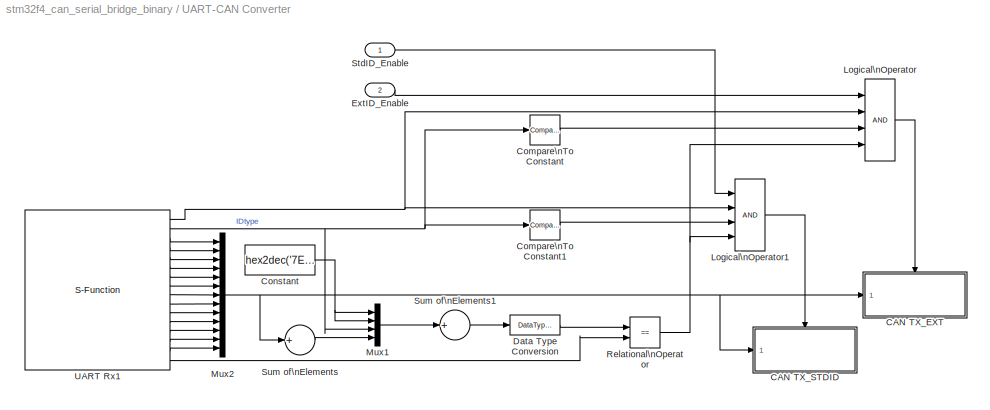
BLOCK [SubSystem] UART-CAN Converter
  FunctionWithSeparateData = off
  MaskHideContents = off
  MinAlgLoopOccurrences = off
  Opaque = off
  Ports = [2]
  PropExecContextOutsideSubsystem = off
  RTWSystemCode = Auto
  RequestExecContextInheritance = off
BLOCK [SubSystem] UART-CAN Converter/CAN TX_EXT
  FunctionWithSeparateData = off
  MaskHideContents = off
  MinAlgLoopOccurrences = off
  Opaque = off
  Ports = [1, 0, 1]
  PropExecContextOutsideSubsystem = off
  RTWSystemCode = Auto
  RequestExecContextInheritance = off
  TreatAsAtomicUnit = on
BLOCK [Reference] UART-CAN Converter/CAN TX_EXT/CAN Transmit1  REF=stm32f4_canbus_lib/CAN Transmit
  Ports = [10, 1]
  SourceBlock = stm32f4_canbus_lib/CAN Transmit
  SourceType = stm32f4_can
  blockid = UARTCANConverterCANTX_EXTCANTransmit1
  canmodule = 1
  compat = 0
  conf = Tx
  confstr = [\"Blocking\",\"0.5\",\"Extended\",\"off\",\"0\",\"off\",\"8\",\"on\",\"uint8\",\"uint8\",\"uint8\",\"uint8\",\"uint8\",\"uint8\",\"uint8\",\"uint8\"]
  data0type = uint8
  data1type = uint8
  data2type = uint8
  data3type = uint8
  data4type = uint8
  data5type = uint8
  data6type = uint8
  data7type = uint8
  datatype = single
  dlc = 8
  enablestatus = on
  id = 0
  idtype = Extended
  inputarray = [ -1, -1, 3, 3, 3, 3, 3, 3, 3, 3]
  inputlabelarray = { 'ID', 'DLC', 'D0 (uint8)', 'D1 (uint8)', 'D2 (uint8)', 'D3 (uint8)', 'D4 (uint8)', 'D5 (uint8)', 'D6 (uint8)', 'D7 (uint8)' }
  outputarray = [7]
  outputlabelarray = {'Status'}
  sampletime = -1
  sampletimestr = 0.01
  specificdlc = off
  specificid = off
  timeout = 0.5
  transfer = Blocking
BLOCK [Constant] UART-CAN Converter/CAN TX_EXT/Constant
  OutDataType = fixdt(1, 16)
  OutDataTypeMode = uint8
  OutDataTypeStr = uint8
  OutScaling = 2^0
  Value = hex2dec('7F')
BLOCK [DataTypeConversion] UART-CAN Converter/CAN TX_EXT/Data Type Conversion
  OutDataType = fixdt(1, 16)
  OutScaling = 2^0
  RndMeth = Floor
  SaturateOnIntegerOverflow = off
BLOCK [Demux] UART-CAN Converter/CAN TX_EXT/Demux2
  DisplayOption = bar
  Outputs = 13
  Ports = [1, 13]
BLOCK [EnablePort] UART-CAN Converter/CAN TX_EXT/Enable
  Ports = []
BLOCK [Inport] UART-CAN Converter/CAN TX_EXT/In1
  IconDisplay = Port number
  OutDataType = fixdt(1, 16)
  OutScaling = 2^0
BLOCK [Mux] UART-CAN Converter/CAN TX_EXT/Mux
  DisplayOption = bar
  Inputs = 3
  Ports = [3, 1]
BLOCK [SubSystem] UART-CAN Converter/CAN TX_EXT/Subsystem
  FunctionWithSeparateData = off
  MaskHideContents = off
  MinAlgLoopOccurrences = off
  Opaque = off
  Ports = [4, 1]
  PropExecContextOutsideSubsystem = off
  RTWSystemCode = Auto
  RequestExecContextInheritance = off
BLOCK [Reference] UART-CAN Converter/CAN TX_EXT/Subsystem/Bitwise\nOperator1  REF=simulink/Logic and Bit\nOperations/Bitwise\nOperator
  BitMask = bin2dec('11011001')
  BitMaskRealWorld = Stored Integer
  NumInputPorts = 4
  Ports = [4, 1]
  SourceBlock = simulink/Logic and Bit\nOperations/Bitwise\nOperator
  SourceType = Bitwise Operator
  UseBitMask = off
  logicop = OR
BLOCK [DataTypeConversion] UART-CAN Converter/CAN TX_EXT/Subsystem/Data Type Conversion
  OutDataType = fixdt(1, 16)
  OutDataTypeMode = uint32
  OutDataTypeStr = uint32
  OutScaling = 2^0
  RndMeth = Floor
  SaturateOnIntegerOverflow = off
BLOCK [DataTypeConversion] UART-CAN Converter/CAN TX_EXT/Subsystem/Data Type Conversion1
  OutDataType = fixdt(1, 16)
  OutDataTypeMode = uint32
  OutDataTypeStr = uint32
  OutScaling = 2^0
  RndMeth = Floor
  SaturateOnIntegerOverflow = off
BLOCK [DataTypeConversion] UART-CAN Converter/CAN TX_EXT/Subsystem/Data Type Conversion2
  OutDataType = fixdt(1, 16)
  OutDataTypeMode = uint32
  OutDataTypeStr = uint32
  OutScaling = 2^0
  RndMeth = Floor
  SaturateOnIntegerOverflow = off
BLOCK [DataTypeConversion] UART-CAN Converter/CAN TX_EXT/Subsystem/Data Type Conversion3
  OutDataType = fixdt(1, 16)
  OutDataTypeMode = uint32
  OutDataTypeStr = uint32
  OutScaling = 2^0
  RndMeth = Floor
  SaturateOnIntegerOverflow = off
BLOCK [Inport] UART-CAN Converter/CAN TX_EXT/Subsystem/In1
  IconDisplay = Port number
  OutDataType = fixdt(1, 16)
  OutScaling = 2^0
BLOCK [Inport] UART-CAN Converter/CAN TX_EXT/Subsystem/In2
  IconDisplay = Port number
  OutDataType = fixdt(1, 16)
  OutScaling = 2^0
  Port = 2
BLOCK [Inport] UART-CAN Converter/CAN TX_EXT/Subsystem/In3
  IconDisplay = Port number
  OutDataType = fixdt(1, 16)
  OutScaling = 2^0
  Port = 3
BLOCK [Inport] UART-CAN Converter/CAN TX_EXT/Subsystem/In4
  IconDisplay = Port number
  OutDataType = fixdt(1, 16)
  OutScaling = 2^0
  Port = 4
BLOCK [Outport] UART-CAN Converter/CAN TX_EXT/Subsystem/Out1
  IconDisplay = Port number
  OutDataType = fixdt(1, 16)
  OutScaling = 2^0
BLOCK [Reference] UART-CAN Converter/CAN TX_EXT/Subsystem/Shift\nArithmetic  REF=simulink/Logic and Bit\nOperations/Shift\nArithmetic
  FunctionWithSeparateData = off
  Ports = [1, 1]
  RTWMemSecDataConstants = Inherit from model
  RTWMemSecDataInternal = Inherit from model
  RTWMemSecDataParameters = Inherit from model
  RTWMemSecFuncExecute = Inherit from model
  RTWMemSecFuncInitTerm = Inherit from model
  ShowPortLabels = FromPortIcon
  SourceBlock = simulink/Logic and Bit\nOperations/Shift\nArithmetic
  SourceType = Shift Arithmetic
  SystemSampleTime = -1
  nBinPtShiftRight = 0
  nBitShiftRight = -8
BLOCK [Reference] UART-CAN Converter/CAN TX_EXT/Subsystem/Shift\nArithmetic1  REF=simulink/Logic and Bit\nOperations/Shift\nArithmetic
  FunctionWithSeparateData = off
  Ports = [1, 1]
  RTWMemSecDataConstants = Inherit from model
  RTWMemSecDataInternal = Inherit from model
  RTWMemSecDataParameters = Inherit from model
  RTWMemSecFuncExecute = Inherit from model
  RTWMemSecFuncInitTerm = Inherit from model
  ShowPortLabels = FromPortIcon
  SourceBlock = simulink/Logic and Bit\nOperations/Shift\nArithmetic
  SourceType = Shift Arithmetic
  SystemSampleTime = -1
  nBinPtShiftRight = 0
  nBitShiftRight = -16
BLOCK [Reference] UART-CAN Converter/CAN TX_EXT/Subsystem/Shift\nArithmetic2  REF=simulink/Logic and Bit\nOperations/Shift\nArithmetic
  FunctionWithSeparateData = off
  Ports = [1, 1]
  RTWMemSecDataConstants = Inherit from model
  RTWMemSecDataInternal = Inherit from model
  RTWMemSecDataParameters = Inherit from model
  RTWMemSecFuncExecute = Inherit from model
  RTWMemSecFuncInitTerm = Inherit from model
  ShowPortLabels = FromPortIcon
  SourceBlock = simulink/Logic and Bit\nOperations/Shift\nArithmetic
  SourceType = Shift Arithmetic
  SystemSampleTime = -1
  nBinPtShiftRight = 0
  nBitShiftRight = -24
BLOCK [Sum] UART-CAN Converter/CAN TX_EXT/Sum of\nElements
  InputSameDT = off
  Inputs = +
  OutDataType = fixdt(1, 16)
  OutDataTypeMode = Inherit via internal rule
  OutDataTypeStr = Inherit: Inherit via internal rule
  OutScaling = 2^-10
  Ports = [1, 1]
  SaturateOnIntegerOverflow = off
BLOCK [S-Function] UART-CAN Converter/CAN TX_EXT/UART Tx1
  EnableBusSupport = off
  FunctionName = stm32f4_usart
  MaskDescription = Data type for Ascii format\n%u, %i, %d, %o, %x: uint32\n%e, %g, %f: single\n%c: int8
  MaskDisplay = text(0.95, 0.5, 'Module: USART3_Tx\\nPacket: Binary\\nTransfer: Blocking\\nTs (sec): 0.01','ver','middle','hor','right'); port_label('input', 1,'uint8'); port_label('input', 2,'uint8'); port_label('input', 3,'uint8'); port_label('input', 4,'uint8');
  MaskEnableString = on,on,on,on,on,on,on,on,on,off,off,on,on,on,on,on,on,on,on,on,on,on,on,on,on,on,on,on,on,on,on,on,on,on,on,on,on,on,on,off,off,on,on
  MaskHelp = web(fullfile(waijungdocroot,'stm32f4_usart_tx.htm'), '-browser')
  MaskIconFrame = on
  MaskIconOpaque = on
  MaskIconRotate = none
  MaskIconUnits = normalized
  MaskInitialization = stm32f4_usart_callback('init');
  MaskPortRotate = default
  MaskSelfModifiable = on
  MaskTabNameString = ,,,,,,,,,,,,,,,,,,,,,,,,,,,,,,,,,,,,,,,,,,
  MaskToolTipString = on,on,on,on,on,on,on,on,on,on,on,on,on,on,on,on,on,on,on,on,on,on,on,on,on,on,on,on,on,on,on,on,on,on,on,on,on,on,on,on,on,on,on
  MaskTunableValueString = off,off,off,off,off,off,off,off,off,off,off,off,off,off,off,off,off,off,off,off,off,off,off,off,off,off,off,off,off,off,off,off,off,off,off,off,off,off,off,off,off,off,off
  MaskType = stm32f4_usart
  MaskValueString = Tx|3|115200|8|No|1|Not used|Not used|None|Not used|Not used|off|512|512|Blocking|Binary|''|''|0|0|0|4|0|0|0|0|'value=%d,%f'|CRLF (0x0D 0x0A - \"<path>")|CRLF (0x0D 0x0A - \"<path>")|<empty>||[4  3 3 3 3]|[0]|[0 ]|[0 ]|4|'value=%d,%f\\r\\n'|[2 13 10]|-1|0.01|UARTCANConverterCANTX_EXTUARTTx1|[ \"dummy\", \"0\", \"*\", \"*\", \"0\", \"*\", \"*\", \"0\", \"*\", \"*\", \"0\", \"*\", \"*\", \"1\", \"4...<+121ch>
  MaskVarAliasString = ,,,,,,,,,,,,,,,,,,,,,,,,,,,,,,,,,,,,,,,,,,
  MaskVisibilityString = off,on,off,off,off,off,off,off,off,off,off,off,off,off,on,on,on,on,on,on,on,on,on,on,on,on,off,off,off,off,off,off,off,off,off,off,off,off,on,off,off,off,off
  Ports = [4]
  Priority = 1
BLOCK [SubSystem] UART-CAN Converter/CAN TX_STDID
  FunctionWithSeparateData = off
  MaskHideContents = off
  MinAlgLoopOccurrences = off
  Opaque = off
  Ports = [1, 0, 1]
  PropExecContextOutsideSubsystem = off
  RTWSystemCode = Auto
  RequestExecContextInheritance = off
  TreatAsAtomicUnit = on
BLOCK [Reference] UART-CAN Converter/CAN TX_STDID/CAN Transmit1  REF=stm32f4_canbus_lib/CAN Transmit
  Ports = [10, 1]
  SourceBlock = stm32f4_canbus_lib/CAN Transmit
  SourceType = stm32f4_can
  blockid = UARTCANConverterCANTX_STDIDCANTransmit1
  canmodule = 1
  compat = 0
  conf = Tx
  confstr = [\"Blocking\",\"0.5\",\"Standard\",\"off\",\"0\",\"off\",\"8\",\"on\",\"uint8\",\"uint8\",\"uint8\",\"uint8\",\"uint8\",\"uint8\",\"uint8\",\"uint8\"]
  data0type = uint8
  data1type = uint8
  data2type = uint8
  data3type = uint8
  data4type = uint8
  data5type = uint8
  data6type = uint8
  data7type = uint8
  datatype = single
  dlc = 8
  enablestatus = on
  id = 0
  idtype = Standard
  inputarray = [ -1, -1, 3, 3, 3, 3, 3, 3, 3, 3]
  inputlabelarray = { 'ID', 'DLC', 'D0 (uint8)', 'D1 (uint8)', 'D2 (uint8)', 'D3 (uint8)', 'D4 (uint8)', 'D5 (uint8)', 'D6 (uint8)', 'D7 (uint8)' }
  outputarray = [7]
  outputlabelarray = {'Status'}
  sampletime = -1
  sampletimestr = 0.01
  specificdlc = off
  specificid = off
  timeout = 0.5
  transfer = Blocking
BLOCK [Constant] UART-CAN Converter/CAN TX_STDID/Constant
  OutDataType = fixdt(1, 16)
  OutDataTypeMode = uint8
  OutDataTypeStr = uint8
  OutScaling = 2^0
  Value = hex2dec('7F')
BLOCK [DataTypeConversion] UART-CAN Converter/CAN TX_STDID/Data Type Conversion
  OutDataType = fixdt(1, 16)
  OutScaling = 2^0
  RndMeth = Floor
  SaturateOnIntegerOverflow = off
BLOCK [Demux] UART-CAN Converter/CAN TX_STDID/Demux2
  DisplayOption = bar
  Outputs = 13
  Ports = [1, 13]
BLOCK [EnablePort] UART-CAN Converter/CAN TX_STDID/Enable
  Ports = []
BLOCK [Inport] UART-CAN Converter/CAN TX_STDID/In1
  IconDisplay = Port number
  OutDataType = fixdt(1, 16)
  OutScaling = 2^0
BLOCK [Mux] UART-CAN Converter/CAN TX_STDID/Mux
  DisplayOption = bar
  Inputs = 3
  Ports = [3, 1]
BLOCK [SubSystem] UART-CAN Converter/CAN TX_STDID/Subsystem
  FunctionWithSeparateData = off
  MaskHideContents = off
  MinAlgLoopOccurrences = off
  Opaque = off
  Ports = [4, 1]
  PropExecContextOutsideSubsystem = off
  RTWSystemCode = Auto
  RequestExecContextInheritance = off
BLOCK [Reference] UART-CAN Converter/CAN TX_STDID/Subsystem/Bitwise\nOperator1  REF=simulink/Logic and Bit\nOperations/Bitwise\nOperator
  BitMask = bin2dec('11011001')
  BitMaskRealWorld = Stored Integer
  NumInputPorts = 4
  Ports = [4, 1]
  SourceBlock = simulink/Logic and Bit\nOperations/Bitwise\nOperator
  SourceType = Bitwise Operator
  UseBitMask = off
  logicop = OR
BLOCK [DataTypeConversion] UART-CAN Converter/CAN TX_STDID/Subsystem/Data Type Conversion
  OutDataType = fixdt(1, 16)
  OutDataTypeMode = uint32
  OutDataTypeStr = uint32
  OutScaling = 2^0
  RndMeth = Floor
  SaturateOnIntegerOverflow = off
BLOCK [DataTypeConversion] UART-CAN Converter/CAN TX_STDID/Subsystem/Data Type Conversion1
  OutDataType = fixdt(1, 16)
  OutDataTypeMode = uint32
  OutDataTypeStr = uint32
  OutScaling = 2^0
  RndMeth = Floor
  SaturateOnIntegerOverflow = off
BLOCK [DataTypeConversion] UART-CAN Converter/CAN TX_STDID/Subsystem/Data Type Conversion2
  OutDataType = fixdt(1, 16)
  OutDataTypeMode = uint32
  OutDataTypeStr = uint32
  OutScaling = 2^0
  RndMeth = Floor
  SaturateOnIntegerOverflow = off
BLOCK [DataTypeConversion] UART-CAN Converter/CAN TX_STDID/Subsystem/Data Type Conversion3
  OutDataType = fixdt(1, 16)
  OutDataTypeMode = uint32
  OutDataTypeStr = uint32
  OutScaling = 2^0
  RndMeth = Floor
  SaturateOnIntegerOverflow = off
BLOCK [Inport] UART-CAN Converter/CAN TX_STDID/Subsystem/In1
  IconDisplay = Port number
  OutDataType = fixdt(1, 16)
  OutScaling = 2^0
BLOCK [Inport] UART-CAN Converter/CAN TX_STDID/Subsystem/In2
  IconDisplay = Port number
  OutDataType = fixdt(1, 16)
  OutScaling = 2^0
  Port = 2
BLOCK [Inport] UART-CAN Converter/CAN TX_STDID/Subsystem/In3
  IconDisplay = Port number
  OutDataType = fixdt(1, 16)
  OutScaling = 2^0
  Port = 3
BLOCK [Inport] UART-CAN Converter/CAN TX_STDID/Subsystem/In4
  IconDisplay = Port number
  OutDataType = fixdt(1, 16)
  OutScaling = 2^0
  Port = 4
BLOCK [Outport] UART-CAN Converter/CAN TX_STDID/Subsystem/Out1
  IconDisplay = Port number
  OutDataType = fixdt(1, 16)
  OutScaling = 2^0
BLOCK [Reference] UART-CAN Converter/CAN TX_STDID/Subsystem/Shift\nArithmetic  REF=simulink/Logic and Bit\nOperations/Shift\nArithmetic
  FunctionWithSeparateData = off
  Ports = [1, 1]
  RTWMemSecDataConstants = Inherit from model
  RTWMemSecDataInternal = Inherit from model
  RTWMemSecDataParameters = Inherit from model
  RTWMemSecFuncExecute = Inherit from model
  RTWMemSecFuncInitTerm = Inherit from model
  ShowPortLabels = FromPortIcon
  SourceBlock = simulink/Logic and Bit\nOperations/Shift\nArithmetic
  SourceType = Shift Arithmetic
  SystemSampleTime = -1
  nBinPtShiftRight = 0
  nBitShiftRight = -8
BLOCK [Reference] UART-CAN Converter/CAN TX_STDID/Subsystem/Shift\nArithmetic1  REF=simulink/Logic and Bit\nOperations/Shift\nArithmetic
  FunctionWithSeparateData = off
  Ports = [1, 1]
  RTWMemSecDataConstants = Inherit from model
  RTWMemSecDataInternal = Inherit from model
  RTWMemSecDataParameters = Inherit from model
  RTWMemSecFuncExecute = Inherit from model
  RTWMemSecFuncInitTerm = Inherit from model
  ShowPortLabels = FromPortIcon
  SourceBlock = simulink/Logic and Bit\nOperations/Shift\nArithmetic
  SourceType = Shift Arithmetic
  SystemSampleTime = -1
  nBinPtShiftRight = 0
  nBitShiftRight = -16
BLOCK [Reference] UART-CAN Converter/CAN TX_STDID/Subsystem/Shift\nArithmetic2  REF=simulink/Logic and Bit\nOperations/Shift\nArithmetic
  FunctionWithSeparateData = off
  Ports = [1, 1]
  RTWMemSecDataConstants = Inherit from model
  RTWMemSecDataInternal = Inherit from model
  RTWMemSecDataParameters = Inherit from model
  RTWMemSecFuncExecute = Inherit from model
  RTWMemSecFuncInitTerm = Inherit from model
  ShowPortLabels = FromPortIcon
  SourceBlock = simulink/Logic and Bit\nOperations/Shift\nArithmetic
  SourceType = Shift Arithmetic
  SystemSampleTime = -1
  nBinPtShiftRight = 0
  nBitShiftRight = -24
BLOCK [Sum] UART-CAN Converter/CAN TX_STDID/Sum of\nElements
  InputSameDT = off
  Inputs = +
  OutDataType = fixdt(1, 16)
  OutDataTypeMode = Inherit via internal rule
  OutDataTypeStr = Inherit: Inherit via internal rule
  OutScaling = 2^-10
  Ports = [1, 1]
  SaturateOnIntegerOverflow = off
BLOCK [S-Function] UART-CAN Converter/CAN TX_STDID/UART Tx1
  EnableBusSupport = off
  FunctionName = stm32f4_usart
  MaskDescription = Data type for Ascii format\n%u, %i, %d, %o, %x: uint32\n%e, %g, %f: single\n%c: int8
  MaskDisplay = text(0.95, 0.5, 'Module: USART3_Tx\\nPacket: Binary\\nTransfer: Blocking\\nTs (sec): 0.01','ver','middle','hor','right'); port_label('input', 1,'uint8'); port_label('input', 2,'uint8'); port_label('input', 3,'uint8'); port_label('input', 4,'uint8');
  MaskEnableString = on,on,on,on,on,on,on,on,on,off,off,on,on,on,on,on,on,on,on,on,on,on,on,on,on,on,on,on,on,on,on,on,on,on,on,on,on,on,on,off,off,on,on
  MaskHelp = web(fullfile(waijungdocroot,'stm32f4_usart_tx.htm'), '-browser')
  MaskIconFrame = on
  MaskIconOpaque = on
  MaskIconRotate = none
  MaskIconUnits = normalized
  MaskInitialization = stm32f4_usart_callback('init');
  MaskPortRotate = default
  MaskSelfModifiable = on
  MaskTabNameString = ,,,,,,,,,,,,,,,,,,,,,,,,,,,,,,,,,,,,,,,,,,
  MaskToolTipString = on,on,on,on,on,on,on,on,on,on,on,on,on,on,on,on,on,on,on,on,on,on,on,on,on,on,on,on,on,on,on,on,on,on,on,on,on,on,on,on,on,on,on
  MaskTunableValueString = off,off,off,off,off,off,off,off,off,off,off,off,off,off,off,off,off,off,off,off,off,off,off,off,off,off,off,off,off,off,off,off,off,off,off,off,off,off,off,off,off,off,off
  MaskType = stm32f4_usart
  MaskValueString = Tx|3|115200|8|No|1|Not used|Not used|None|Not used|Not used|off|512|512|Blocking|Binary|''|''|0|0|0|4|0|0|0|0|'value=%d,%f'|CRLF (0x0D 0x0A - \"<path>")|CRLF (0x0D 0x0A - \"<path>")|<empty>||[4  3 3 3 3]|[0]|[0 ]|[0 ]|4|'value=%d,%f\\r\\n'|[2 13 10]|-1|0.01|UARTCANConverterCANTX_STDIDUARTTx1|[ \"dummy\", \"0\", \"*\", \"*\", \"0\", \"*\", \"*\", \"0\", \"*\", \"*\", \"0\", \"*\", \"*\", \"1\", \...<+123ch>
  MaskVarAliasString = ,,,,,,,,,,,,,,,,,,,,,,,,,,,,,,,,,,,,,,,,,,
  MaskVisibilityString = off,on,off,off,off,off,off,off,off,off,off,off,off,off,on,on,on,on,on,on,on,on,on,on,on,on,off,off,off,off,off,off,off,off,off,off,off,off,on,off,off,off,off
  Ports = [4]
  Priority = 1
BLOCK [Reference] UART-CAN Converter/Compare\nTo Constant  REF=simulink/Logic and Bit\nOperations/Compare\nTo Constant
  FunctionWithSeparateData = off
  LogicOutDataTypeMode = uint8
  Ports = [1, 1]
  RTWMemSecDataConstants = Inherit from model
  RTWMemSecDataInternal = Inherit from model
  RTWMemSecDataParameters = Inherit from model
  RTWMemSecFuncExecute = Inherit from model
  RTWMemSecFuncInitTerm = Inherit from model
  ShowPortLabels = FromPortIcon
  SourceBlock = simulink/Logic and Bit\nOperations/Compare\nTo Constant
  SourceType = Compare To Constant
  SystemSampleTime = -1
  ZeroCross = off
  const = 0
  relop = ==
BLOCK [Reference] UART-CAN Converter/Compare\nTo Constant1  REF=simulink/Logic and Bit\nOperations/Compare\nTo Constant
  FunctionWithSeparateData = off
  LogicOutDataTypeMode = uint8
  Ports = [1, 1]
  RTWMemSecDataConstants = Inherit from model
  RTWMemSecDataInternal = Inherit from model
  RTWMemSecDataParameters = Inherit from model
  RTWMemSecFuncExecute = Inherit from model
  RTWMemSecFuncInitTerm = Inherit from model
  ShowPortLabels = FromPortIcon
  SourceBlock = simulink/Logic and Bit\nOperations/Compare\nTo Constant
  SourceType = Compare To Constant
  SystemSampleTime = -1
  ZeroCross = off
  const = 1
  relop = ==
BLOCK [Constant] UART-CAN Converter/Constant
  OutDataType = fixdt(1, 16)
  OutDataTypeMode = uint8
  OutDataTypeStr = uint8
  OutScaling = 2^0
  Value = hex2dec('7E')
BLOCK [DataTypeConversion] UART-CAN Converter/Data Type Conversion
  OutDataType = fixdt(1, 16)
  OutDataTypeMode = uint8
  OutDataTypeStr = uint8
  OutScaling = 2^0
  RndMeth = Floor
  SaturateOnIntegerOverflow = off
BLOCK [Inport] UART-CAN Converter/ExtID_Enable
  IconDisplay = Port number
  OutDataType = fixdt(1, 16)
  OutScaling = 2^0
  Port = 2
BLOCK [Logic] UART-CAN Converter/Logical\nOperator
  AllPortsSameDT = off
  Inputs = 4
  LogicDataType = fixdt(0, 8)
  OutDataTypeMode = boolean
  OutDataTypeStr = boolean
  Ports = [4, 1]
BLOCK [Logic] UART-CAN Converter/Logical\nOperator1
  AllPortsSameDT = off
  Inputs = 4
  LogicDataType = fixdt(0, 8)
  OutDataTypeMode = boolean
  OutDataTypeStr = boolean
  Ports = [4, 1]
BLOCK [Mux] UART-CAN Converter/Mux1
  DisplayOption = bar
  Ports = [4, 1]
BLOCK [Mux] UART-CAN Converter/Mux2
  DisplayOption = bar
  Inputs = 13
  Ports = [13, 1]
BLOCK [RelationalOperator] UART-CAN Converter/Relational\nOperator
  InputSameDT = off
  LogicDataType = fixdt(0, 8)
  LogicOutDataTypeMode = boolean
  Operator = ==
  OutDataTypeStr = boolean
BLOCK [Inport] UART-CAN Converter/StdID_Enable
  IconDisplay = Port number
  OutDataType = fixdt(1, 16)
  OutScaling = 2^0
BLOCK [Sum] UART-CAN Converter/Sum of\nElements
  InputSameDT = off
  Inputs = +
  OutDataType = fixdt(1, 16)
  OutDataTypeMode = Inherit via internal rule
  OutDataTypeStr = Inherit: Inherit via internal rule
  OutScaling = 2^-10
  Ports = [1, 1]
  SaturateOnIntegerOverflow = off
BLOCK [Sum] UART-CAN Converter/Sum of\nElements1
  InputSameDT = off
  Inputs = +
  OutDataType = fixdt(1, 16)
  OutDataTypeMode = Inherit via internal rule
  OutDataTypeStr = Inherit: Inherit via internal rule
  OutScaling = 2^-10
  Ports = [1, 1]
  SaturateOnIntegerOverflow = off
BLOCK [S-Function] UART-CAN Converter/UART Rx1
  EnableBusSupport = off
  FunctionName = stm32f4_usart
  MaskDescription = Data type for Ascii format\n%u, %i, %d, %o, %x: uint32\n%e, %g, %f: single\n%c: int8
  MaskDisplay = text(0.05, 0.5, 'Module: USART3_Rx\\nPacket: Binary\\nTransfer: Non-Blocking\\nTs (sec): 0.01','ver','middle','hor','left'); port_label('output', 1,'READY'); port_label('output', 2,'uint8'); port_label('output', 3,'uint8'); port_label('output', 4,'uint8'); port_label('output', 5,'uint8'); port_label('output', 6,'uint8'); port_label('output', 7,'uint8'); port_label('output', 8,'uint8'); port_label(...<+259ch>
  MaskEnableString = on,on,on,on,on,on,on,on,on,off,off,on,on,on,on,on,on,on,on,on,on,on,on,on,on,on,on,on,on,on,on,on,on,on,on,on,on,on,on,off,off,on,on
  MaskHelp = web(fullfile(waijungdocroot,'stm32f4_usart_rx.htm'), '-browser')
  MaskIconFrame = on
  MaskIconOpaque = on
  MaskIconRotate = none
  MaskIconUnits = normalized
  MaskInitialization = stm32f4_usart_callback('init');
  MaskPortRotate = default
  MaskSelfModifiable = on
  MaskTabNameString = ,,,,,,,,,,,,,,,,,,,,,,,,,,,,,,,,,,,,,,,,,,
  MaskToolTipString = on,on,on,on,on,on,on,on,on,on,on,on,on,on,on,on,on,on,on,on,on,on,on,on,on,on,on,on,on,on,on,on,on,on,on,on,on,on,on,on,on,on,on
  MaskTunableValueString = off,off,off,off,off,off,off,off,off,off,off,off,off,off,off,off,off,off,off,off,off,off,off,off,off,off,off,off,off,off,off,off,off,off,off,off,off,off,off,off,off,off,off
  MaskType = stm32f4_usart
  MaskValueString = Rx|3|115200|8|No|1|Not used|Not used|None|Not used|Not used|off|512|512|Non-Blocking|Binary|'7E 7E'|''|0|0|0|15|0|0|0|0|'value=%d,%f'|CRLF (0x0D 0x0A - \"<path>")|LF (0x0A - \"\\n\")|<empty>||[0]|[16 3  3 3 3 3 3 3 3 3 3 3 3 3 3 3 3]|[2 126  126]|[0 ]|15|'value=%d,%f\\r\\n'|[2 13 10]|-1|0.01|UARTCANConverterUARTRx1|[ \"dummy\", \"0\", \"*\", \"*\", \"0\", \"*\", \"*\", \"0\", \"*\", \"*\", \"0\",...<+146ch>
  MaskVarAliasString = ,,,,,,,,,,,,,,,,,,,,,,,,,,,,,,,,,,,,,,,,,,
  MaskVisibilityString = off,on,off,off,off,off,off,off,off,off,off,off,off,off,on,on,on,on,on,on,on,on,on,on,on,on,off,off,off,off,off,off,off,off,off,off,off,off,on,off,off,off,off
  Ports = [0, 16]
  Priority = 1
ANNOTATION (root): CAN-UART Format (17): [FF][FF] [IDType] [ID0][ID1][ID2][ID3] [DLC] [D0][D1][D2][D3][D4][D5][D6][D7] [SUM]
ANNOTATION (root): Filter Setting Format (13): [AA][55][88][88][88][88] [IDtype] [Enable] [ID0][ID1][ID2][ID3] [SUM] ===> RESPONSE (3): [BB][66][00]
ANNOTATION (root): UART-CAN Format (17): [7E][7E] [IDType] [ID0][ID1][ID2][ID3] [DLC] [D0][D1][D2][D3][D4][D5][D6][D7] [SUM] ===>RESPONSE (4): [7F][7F][sta] [SUM]
ANNOTATION CAN Rx Filter Setting: [AA][55][88][88][88][88][IDtype][Enable][ID0][ID1][ID2][ID3]
ANNOTATION CAN Rx Filter Setting/Response: [BB][66][00]
NET CAN Rx Filter Setting/Compare\nTo Constant1:1 -> CAN Rx Filter Setting/Logical\nOperator1:2, CAN Rx Filter Setting/Logical\nOperator2:1
NET CAN Rx Filter Setting/Compare\nTo Zero:1 -> CAN Rx Filter Setting/Enabled\nSubsystem1:1, CAN Rx Filter Setting/Enabled\nSubsystem:1
LINE CAN Rx Filter Setting/Enabled\nSubsystem/ena:1 -> CAN Rx Filter Setting/Enabled\nSubsystem/StdID_Enable:1
LINE CAN Rx Filter Setting/Enabled\nSubsystem/id:1 -> CAN Rx Filter Setting/Enabled\nSubsystem/StdID:1
LINE CAN Rx Filter Setting/Enabled\nSubsystem1/ena:1 -> CAN Rx Filter Setting/Enabled\nSubsystem1/ExtID_Enable:1
LINE CAN Rx Filter Setting/Enabled\nSubsystem1/id:1 -> CAN Rx Filter Setting/Enabled\nSubsystem1/ExtID:1
LINE CAN Rx Filter Setting/Enabled\nSubsystem1:1 -> CAN Rx Filter Setting/ExtID Enable:1
LINE CAN Rx Filter Setting/Enabled\nSubsystem1:2 -> CAN Rx Filter Setting/ExtID Filter:1
LINE CAN Rx Filter Setting/Enabled\nSubsystem:1 -> CAN Rx Filter Setting/StdID Enable:1
LINE CAN Rx Filter Setting/Enabled\nSubsystem:2 -> CAN Rx Filter Setting/StdID Filter:1
LINE CAN Rx Filter Setting/Logical\nOperator1:1 -> CAN Rx Filter Setting/Enabled\nSubsystem1:enable
LINE CAN Rx Filter Setting/Logical\nOperator2:1 -> CAN Rx Filter Setting/Logical\nOperator:2
LINE CAN Rx Filter Setting/Logical\nOperator:1 -> CAN Rx Filter Setting/Enabled\nSubsystem:enable
NET CAN Rx Filter Setting/UART Rx1:1 -> CAN Rx Filter Setting/Logical\nOperator1:1, CAN Rx Filter Setting/Logical\nOperator:1, CAN Rx Filter Setting/Response:enable
LINE CAN Rx Filter Setting/UART Rx1:2 -> CAN Rx Filter Setting/Compare\nTo Constant1:1
LINE CAN Rx Filter Setting/UART Rx1:3 -> CAN Rx Filter Setting/Compare\nTo Zero:1
NET CAN Rx Filter Setting/UART Rx1:4 -> CAN Rx Filter Setting/Enabled\nSubsystem1:2, CAN Rx Filter Setting/Enabled\nSubsystem:2
LINE CAN Rx Filter Setting:1 -> Goto:1
LINE CAN Rx Filter Setting:2 -> Goto2:1
LINE CAN Rx Filter Setting:3 -> Goto1:1
LINE CAN Rx Filter Setting:4 -> Goto3:1
LINE EXTID CAN_UART Converter/CAN Receive:1 -> EXTID CAN_UART Converter/Compare\nTo Zero1:1
LINE EXTID CAN_UART Converter/CAN Receive:10 -> EXTID CAN_UART Converter/Mux1:7
LINE EXTID CAN_UART Converter/CAN Receive:11 -> EXTID CAN_UART Converter/Mux1:8
NET EXTID CAN_UART Converter/CAN Receive:2 -> EXTID CAN_UART Converter/Enabled\nSubsystem1:1, EXTID CAN_UART Converter/Relational\nOperator:1
LINE EXTID CAN_UART Converter/CAN Receive:3 -> EXTID CAN_UART Converter/Enabled\nSubsystem1:2
LINE EXTID CAN_UART Converter/CAN Receive:4 -> EXTID CAN_UART Converter/Mux1:1
LINE EXTID CAN_UART Converter/CAN Receive:5 -> EXTID CAN_UART Converter/Mux1:2
LINE EXTID CAN_UART Converter/CAN Receive:6 -> EXTID CAN_UART Converter/Mux1:3
LINE EXTID CAN_UART Converter/CAN Receive:7 -> EXTID CAN_UART Converter/Mux1:4
LINE EXTID CAN_UART Converter/CAN Receive:8 -> EXTID CAN_UART Converter/Mux1:5
LINE EXTID CAN_UART Converter/CAN Receive:9 -> EXTID CAN_UART Converter/Mux1:6
LINE EXTID CAN_UART Converter/Compare\nTo Constant:1 -> EXTID CAN_UART Converter/Switch:2
LINE EXTID CAN_UART Converter/Compare\nTo Zero1:1 -> EXTID CAN_UART Converter/Logical\nOperator:1
LINE EXTID CAN_UART Converter/Constant:1 -> EXTID CAN_UART Converter/Switch:1
LINE EXTID CAN_UART Converter/Data Type Conversion:1 -> EXTID CAN_UART Converter/Switch:3
LINE EXTID CAN_UART Converter/Enabled\nSubsystem1/DLC:1 -> EXTID CAN_UART Converter/Enabled\nSubsystem1/Data Type Conversion1:1
NET EXTID CAN_UART Converter/Enabled\nSubsystem1/Data Type Conversion1:1 -> EXTID CAN_UART Converter/Enabled\nSubsystem1/Mux:8, EXTID CAN_UART Converter/Enabled\nSubsystem1/UART Tx:8
NET EXTID CAN_UART Converter/Enabled\nSubsystem1/Data:1 -> EXTID CAN_UART Converter/Enabled\nSubsystem1/Demux:1, EXTID CAN_UART Converter/Enabled\nSubsystem1/Sum of\nElements:1
LINE EXTID CAN_UART Converter/Enabled\nSubsystem1/Demux:1 -> EXTID CAN_UART Converter/Enabled\nSubsystem1/UART Tx:9
LINE EXTID CAN_UART Converter/Enabled\nSubsystem1/Demux:2 -> EXTID CAN_UART Converter/Enabled\nSubsystem1/UART Tx:10
LINE EXTID CAN_UART Converter/Enabled\nSubsystem1/Demux:3 -> EXTID CAN_UART Converter/Enabled\nSubsystem1/UART Tx:11
LINE EXTID CAN_UART Converter/Enabled\nSubsystem1/Demux:4 -> EXTID CAN_UART Converter/Enabled\nSubsystem1/UART Tx:12
LINE EXTID CAN_UART Converter/Enabled\nSubsystem1/Demux:5 -> EXTID CAN_UART Converter/Enabled\nSubsystem1/UART Tx:13
LINE EXTID CAN_UART Converter/Enabled\nSubsystem1/Demux:6 -> EXTID CAN_UART Converter/Enabled\nSubsystem1/UART Tx:14
LINE EXTID CAN_UART Converter/Enabled\nSubsystem1/Demux:7 -> EXTID CAN_UART Converter/Enabled\nSubsystem1/UART Tx:15
LINE EXTID CAN_UART Converter/Enabled\nSubsystem1/Demux:8 -> EXTID CAN_UART Converter/Enabled\nSubsystem1/UART Tx:16
NET EXTID CAN_UART Converter/Enabled\nSubsystem1/FF:1 -> EXTID CAN_UART Converter/Enabled\nSubsystem1/Mux:1, EXTID CAN_UART Converter/Enabled\nSubsystem1/Mux:2, EXTID CAN_UART Converter/Enabled\nSubsystem1/UART Tx:1, EXTID CAN_UART Converter/Enabled\nSubsystem1/UART Tx:2
LINE EXTID CAN_UART Converter/Enabled\nSubsystem1/ID:1 -> EXTID CAN_UART Converter/Enabled\nSubsystem1/Subsystem:1
NET EXTID CAN_UART Converter/Enabled\nSubsystem1/IDTYPE_EXT:1 -> EXTID CAN_UART Converter/Enabled\nSubsystem1/Mux:3, EXTID CAN_UART Converter/Enabled\nSubsystem1/UART Tx:3
LINE EXTID CAN_UART Converter/Enabled\nSubsystem1/Mux:1 -> EXTID CAN_UART Converter/Enabled\nSubsystem1/Sum of\nElements1:1
LINE EXTID CAN_UART Converter/Enabled\nSubsystem1/Subsystem/Data Type Conversion1:1 -> EXTID CAN_UART Converter/Enabled\nSubsystem1/Subsystem/ID1:1
LINE EXTID CAN_UART Converter/Enabled\nSubsystem1/Subsystem/Data Type Conversion2:1 -> EXTID CAN_UART Converter/Enabled\nSubsystem1/Subsystem/ID2:1
LINE EXTID CAN_UART Converter/Enabled\nSubsystem1/Subsystem/Data Type Conversion3:1 -> EXTID CAN_UART Converter/Enabled\nSubsystem1/Subsystem/ID3:1
LINE EXTID CAN_UART Converter/Enabled\nSubsystem1/Subsystem/Data Type Conversion:1 -> EXTID CAN_UART Converter/Enabled\nSubsystem1/Subsystem/ID0:1
NET EXTID CAN_UART Converter/Enabled\nSubsystem1/Subsystem/In1:1 -> EXTID CAN_UART Converter/Enabled\nSubsystem1/Subsystem/Data Type Conversion:1, EXTID CAN_UART Converter/Enabled\nSubsystem1/Subsystem/Shift\nArithmetic1:1, EXTID CAN_UART Converter/Enabled\nSubsystem1/Subsystem/Shift\nArithmetic2:1, EXTID CAN_UART Converter/Enabled\nSubsystem1/Subsystem/Shift\nArithmetic:1
LINE EXTID CAN_UART Converter/Enabled\nSubsystem1/Subsystem/Shift\nArithmetic1:1 -> EXTID CAN_UART Converter/Enabled\nSubsystem1/Subsystem/Data Type Conversion2:1
LINE EXTID CAN_UART Converter/Enabled\nSubsystem1/Subsystem/Shift\nArithmetic2:1 -> EXTID CAN_UART Converter/Enabled\nSubsystem1/Subsystem/Data Type Conversion3:1
LINE EXTID CAN_UART Converter/Enabled\nSubsystem1/Subsystem/Shift\nArithmetic:1 -> EXTID CAN_UART Converter/Enabled\nSubsystem1/Subsystem/Data Type Conversion1:1
NET EXTID CAN_UART Converter/Enabled\nSubsystem1/Subsystem:1 -> EXTID CAN_UART Converter/Enabled\nSubsystem1/Mux:4, EXTID CAN_UART Converter/Enabled\nSubsystem1/UART Tx:4
NET EXTID CAN_UART Converter/Enabled\nSubsystem1/Subsystem:2 -> EXTID CAN_UART Converter/Enabled\nSubsystem1/Mux:5, EXTID CAN_UART Converter/Enabled\nSubsystem1/UART Tx:5
NET EXTID CAN_UART Converter/Enabled\nSubsystem1/Subsystem:3 -> EXTID CAN_UART Converter/Enabled\nSubsystem1/Mux:6, EXTID CAN_UART Converter/Enabled\nSubsystem1/UART Tx:6
NET EXTID CAN_UART Converter/Enabled\nSubsystem1/Subsystem:4 -> EXTID CAN_UART Converter/Enabled\nSubsystem1/Mux:7, EXTID CAN_UART Converter/Enabled\nSubsystem1/UART Tx:7
LINE EXTID CAN_UART Converter/Enabled\nSubsystem1/Sum of\nElements1:1 -> EXTID CAN_UART Converter/Enabled\nSubsystem1/UART Tx:17
LINE EXTID CAN_UART Converter/Enabled\nSubsystem1/Sum of\nElements:1 -> EXTID CAN_UART Converter/Enabled\nSubsystem1/Mux:9
LINE EXTID CAN_UART Converter/Logical\nOperator:1 -> EXTID CAN_UART Converter/Enabled\nSubsystem1:enable
LINE EXTID CAN_UART Converter/Mux1:1 -> EXTID CAN_UART Converter/Enabled\nSubsystem1:3
LINE EXTID CAN_UART Converter/Relational\nOperator:1 -> EXTID CAN_UART Converter/Data Type Conversion:1
NET EXTID CAN_UART Converter/StdFilter:1 -> EXTID CAN_UART Converter/Compare\nTo Constant:1, EXTID CAN_UART Converter/Relational\nOperator:2
LINE EXTID CAN_UART Converter/Switch:1 -> EXTID CAN_UART Converter/Logical\nOperator:2
LINE From1:1 -> STDID CAN_UART Converter:enable
LINE From2:1 -> UART-CAN Converter:1
LINE From3:1 -> UART-CAN Converter:2
LINE From4:1 -> EXTID CAN_UART Converter:1
LINE From5:1 -> STDID CAN_UART Converter:1
LINE From:1 -> EXTID CAN_UART Converter:enable
LINE STDID CAN_UART Converter/CAN Receive:1 -> STDID CAN_UART Converter/Compare\nTo Zero1:1
LINE STDID CAN_UART Converter/CAN Receive:10 -> STDID CAN_UART Converter/Mux1:7
LINE STDID CAN_UART Converter/CAN Receive:11 -> STDID CAN_UART Converter/Mux1:8
NET STDID CAN_UART Converter/CAN Receive:2 -> STDID CAN_UART Converter/Enabled\nSubsystem1:1, STDID CAN_UART Converter/Relational\nOperator:1
LINE STDID CAN_UART Converter/CAN Receive:3 -> STDID CAN_UART Converter/Enabled\nSubsystem1:2
LINE STDID CAN_UART Converter/CAN Receive:4 -> STDID CAN_UART Converter/Mux1:1
LINE STDID CAN_UART Converter/CAN Receive:5 -> STDID CAN_UART Converter/Mux1:2
LINE STDID CAN_UART Converter/CAN Receive:6 -> STDID CAN_UART Converter/Mux1:3
LINE STDID CAN_UART Converter/CAN Receive:7 -> STDID CAN_UART Converter/Mux1:4
LINE STDID CAN_UART Converter/CAN Receive:8 -> STDID CAN_UART Converter/Mux1:5
LINE STDID CAN_UART Converter/CAN Receive:9 -> STDID CAN_UART Converter/Mux1:6
LINE STDID CAN_UART Converter/Compare\nTo Constant:1 -> STDID CAN_UART Converter/Switch:2
LINE STDID CAN_UART Converter/Compare\nTo Zero1:1 -> STDID CAN_UART Converter/Logical\nOperator:1
LINE STDID CAN_UART Converter/Constant:1 -> STDID CAN_UART Converter/Switch:1
LINE STDID CAN_UART Converter/Data Type Conversion:1 -> STDID CAN_UART Converter/Switch:3
LINE STDID CAN_UART Converter/Enabled\nSubsystem1/DLC:1 -> STDID CAN_UART Converter/Enabled\nSubsystem1/Data Type Conversion1:1
NET STDID CAN_UART Converter/Enabled\nSubsystem1/Data Type Conversion1:1 -> STDID CAN_UART Converter/Enabled\nSubsystem1/Mux:8, STDID CAN_UART Converter/Enabled\nSubsystem1/UART Tx:8
NET STDID CAN_UART Converter/Enabled\nSubsystem1/Data:1 -> STDID CAN_UART Converter/Enabled\nSubsystem1/Demux:1, STDID CAN_UART Converter/Enabled\nSubsystem1/Sum of\nElements:1
LINE STDID CAN_UART Converter/Enabled\nSubsystem1/Demux:1 -> STDID CAN_UART Converter/Enabled\nSubsystem1/UART Tx:9
LINE STDID CAN_UART Converter/Enabled\nSubsystem1/Demux:2 -> STDID CAN_UART Converter/Enabled\nSubsystem1/UART Tx:10
LINE STDID CAN_UART Converter/Enabled\nSubsystem1/Demux:3 -> STDID CAN_UART Converter/Enabled\nSubsystem1/UART Tx:11
LINE STDID CAN_UART Converter/Enabled\nSubsystem1/Demux:4 -> STDID CAN_UART Converter/Enabled\nSubsystem1/UART Tx:12
LINE STDID CAN_UART Converter/Enabled\nSubsystem1/Demux:5 -> STDID CAN_UART Converter/Enabled\nSubsystem1/UART Tx:13
LINE STDID CAN_UART Converter/Enabled\nSubsystem1/Demux:6 -> STDID CAN_UART Converter/Enabled\nSubsystem1/UART Tx:14
LINE STDID CAN_UART Converter/Enabled\nSubsystem1/Demux:7 -> STDID CAN_UART Converter/Enabled\nSubsystem1/UART Tx:15
LINE STDID CAN_UART Converter/Enabled\nSubsystem1/Demux:8 -> STDID CAN_UART Converter/Enabled\nSubsystem1/UART Tx:16
NET STDID CAN_UART Converter/Enabled\nSubsystem1/FF:1 -> STDID CAN_UART Converter/Enabled\nSubsystem1/Mux:1, STDID CAN_UART Converter/Enabled\nSubsystem1/Mux:2, STDID CAN_UART Converter/Enabled\nSubsystem1/UART Tx:1, STDID CAN_UART Converter/Enabled\nSubsystem1/UART Tx:2
LINE STDID CAN_UART Converter/Enabled\nSubsystem1/ID:1 -> STDID CAN_UART Converter/Enabled\nSubsystem1/Subsystem:1
NET STDID CAN_UART Converter/Enabled\nSubsystem1/IDTYPE_STD:1 -> STDID CAN_UART Converter/Enabled\nSubsystem1/Mux:3, STDID CAN_UART Converter/Enabled\nSubsystem1/UART Tx:3
LINE STDID CAN_UART Converter/Enabled\nSubsystem1/Mux:1 -> STDID CAN_UART Converter/Enabled\nSubsystem1/Sum of\nElements1:1
LINE STDID CAN_UART Converter/Enabled\nSubsystem1/Subsystem/Data Type Conversion1:1 -> STDID CAN_UART Converter/Enabled\nSubsystem1/Subsystem/ID1:1
LINE STDID CAN_UART Converter/Enabled\nSubsystem1/Subsystem/Data Type Conversion2:1 -> STDID CAN_UART Converter/Enabled\nSubsystem1/Subsystem/ID2:1
LINE STDID CAN_UART Converter/Enabled\nSubsystem1/Subsystem/Data Type Conversion3:1 -> STDID CAN_UART Converter/Enabled\nSubsystem1/Subsystem/ID3:1
LINE STDID CAN_UART Converter/Enabled\nSubsystem1/Subsystem/Data Type Conversion:1 -> STDID CAN_UART Converter/Enabled\nSubsystem1/Subsystem/ID0:1
NET STDID CAN_UART Converter/Enabled\nSubsystem1/Subsystem/In1:1 -> STDID CAN_UART Converter/Enabled\nSubsystem1/Subsystem/Data Type Conversion:1, STDID CAN_UART Converter/Enabled\nSubsystem1/Subsystem/Shift\nArithmetic1:1, STDID CAN_UART Converter/Enabled\nSubsystem1/Subsystem/Shift\nArithmetic2:1, STDID CAN_UART Converter/Enabled\nSubsystem1/Subsystem/Shift\nArithmetic:1
LINE STDID CAN_UART Converter/Enabled\nSubsystem1/Subsystem/Shift\nArithmetic1:1 -> STDID CAN_UART Converter/Enabled\nSubsystem1/Subsystem/Data Type Conversion2:1
LINE STDID CAN_UART Converter/Enabled\nSubsystem1/Subsystem/Shift\nArithmetic2:1 -> STDID CAN_UART Converter/Enabled\nSubsystem1/Subsystem/Data Type Conversion3:1
LINE STDID CAN_UART Converter/Enabled\nSubsystem1/Subsystem/Shift\nArithmetic:1 -> STDID CAN_UART Converter/Enabled\nSubsystem1/Subsystem/Data Type Conversion1:1
NET STDID CAN_UART Converter/Enabled\nSubsystem1/Subsystem:1 -> STDID CAN_UART Converter/Enabled\nSubsystem1/Mux:4, STDID CAN_UART Converter/Enabled\nSubsystem1/UART Tx:4
NET STDID CAN_UART Converter/Enabled\nSubsystem1/Subsystem:2 -> STDID CAN_UART Converter/Enabled\nSubsystem1/Mux:5, STDID CAN_UART Converter/Enabled\nSubsystem1/UART Tx:5
NET STDID CAN_UART Converter/Enabled\nSubsystem1/Subsystem:3 -> STDID CAN_UART Converter/Enabled\nSubsystem1/Mux:6, STDID CAN_UART Converter/Enabled\nSubsystem1/UART Tx:6
NET STDID CAN_UART Converter/Enabled\nSubsystem1/Subsystem:4 -> STDID CAN_UART Converter/Enabled\nSubsystem1/Mux:7, STDID CAN_UART Converter/Enabled\nSubsystem1/UART Tx:7
LINE STDID CAN_UART Converter/Enabled\nSubsystem1/Sum of\nElements1:1 -> STDID CAN_UART Converter/Enabled\nSubsystem1/UART Tx:17
LINE STDID CAN_UART Converter/Enabled\nSubsystem1/Sum of\nElements:1 -> STDID CAN_UART Converter/Enabled\nSubsystem1/Mux:9
LINE STDID CAN_UART Converter/Logical\nOperator:1 -> STDID CAN_UART Converter/Enabled\nSubsystem1:enable
LINE STDID CAN_UART Converter/Mux1:1 -> STDID CAN_UART Converter/Enabled\nSubsystem1:3
LINE STDID CAN_UART Converter/Relational\nOperator:1 -> STDID CAN_UART Converter/Data Type Conversion:1
NET STDID CAN_UART Converter/StdFilter:1 -> STDID CAN_UART Converter/Compare\nTo Constant:1, STDID CAN_UART Converter/Relational\nOperator:2
LINE STDID CAN_UART Converter/Switch:1 -> STDID CAN_UART Converter/Logical\nOperator:2
LINE UART-CAN Converter/CAN TX_EXT/CAN Transmit1:1 -> UART-CAN Converter/CAN TX_EXT/Data Type Conversion:1
NET UART-CAN Converter/CAN TX_EXT/Constant:1 -> UART-CAN Converter/CAN TX_EXT/Mux:1, UART-CAN Converter/CAN TX_EXT/Mux:2, UART-CAN Converter/CAN TX_EXT/UART Tx1:1, UART-CAN Converter/CAN TX_EXT/UART Tx1:2
NET UART-CAN Converter/CAN TX_EXT/Data Type Conversion:1 -> UART-CAN Converter/CAN TX_EXT/Mux:3, UART-CAN Converter/CAN TX_EXT/UART Tx1:3
LINE UART-CAN Converter/CAN TX_EXT/Demux2:1 -> UART-CAN Converter/CAN TX_EXT/Subsystem:1
LINE UART-CAN Converter/CAN TX_EXT/Demux2:10 -> UART-CAN Converter/CAN TX_EXT/CAN Transmit1:7
LINE UART-CAN Converter/CAN TX_EXT/Demux2:11 -> UART-CAN Converter/CAN TX_EXT/CAN Transmit1:8
LINE UART-CAN Converter/CAN TX_EXT/Demux2:12 -> UART-CAN Converter/CAN TX_EXT/CAN Transmit1:9
LINE UART-CAN Converter/CAN TX_EXT/Demux2:13 -> UART-CAN Converter/CAN TX_EXT/CAN Transmit1:10
LINE UART-CAN Converter/CAN TX_EXT/Demux2:2 -> UART-CAN Converter/CAN TX_EXT/Subsystem:2
LINE UART-CAN Converter/CAN TX_EXT/Demux2:3 -> UART-CAN Converter/CAN TX_EXT/Subsystem:3
LINE UART-CAN Converter/CAN TX_EXT/Demux2:4 -> UART-CAN Converter/CAN TX_EXT/Subsystem:4
LINE UART-CAN Converter/CAN TX_EXT/Demux2:5 -> UART-CAN Converter/CAN TX_EXT/CAN Transmit1:2
LINE UART-CAN Converter/CAN TX_EXT/Demux2:6 -> UART-CAN Converter/CAN TX_EXT/CAN Transmit1:3
LINE UART-CAN Converter/CAN TX_EXT/Demux2:7 -> UART-CAN Converter/CAN TX_EXT/CAN Transmit1:4
LINE UART-CAN Converter/CAN TX_EXT/Demux2:8 -> UART-CAN Converter/CAN TX_EXT/CAN Transmit1:5
LINE UART-CAN Converter/CAN TX_EXT/Demux2:9 -> UART-CAN Converter/CAN TX_EXT/CAN Transmit1:6
LINE UART-CAN Converter/CAN TX_EXT/In1:1 -> UART-CAN Converter/CAN TX_EXT/Demux2:1
LINE UART-CAN Converter/CAN TX_EXT/Mux:1 -> UART-CAN Converter/CAN TX_EXT/Sum of\nElements:1
LINE UART-CAN Converter/CAN TX_EXT/Subsystem/Bitwise\nOperator1:1 -> UART-CAN Converter/CAN TX_EXT/Subsystem/Out1:1
LINE UART-CAN Converter/CAN TX_EXT/Subsystem/Data Type Conversion1:1 -> UART-CAN Converter/CAN TX_EXT/Subsystem/Shift\nArithmetic:1
LINE UART-CAN Converter/CAN TX_EXT/Subsystem/Data Type Conversion2:1 -> UART-CAN Converter/CAN TX_EXT/Subsystem/Shift\nArithmetic1:1
LINE UART-CAN Converter/CAN TX_EXT/Subsystem/Data Type Conversion3:1 -> UART-CAN Converter/CAN TX_EXT/Subsystem/Shift\nArithmetic2:1
LINE UART-CAN Converter/CAN TX_EXT/Subsystem/Data Type Conversion:1 -> UART-CAN Converter/CAN TX_EXT/Subsystem/Bitwise\nOperator1:1
LINE UART-CAN Converter/CAN TX_EXT/Subsystem/In1:1 -> UART-CAN Converter/CAN TX_EXT/Subsystem/Data Type Conversion:1
LINE UART-CAN Converter/CAN TX_EXT/Subsystem/In2:1 -> UART-CAN Converter/CAN TX_EXT/Subsystem/Data Type Conversion1:1
LINE UART-CAN Converter/CAN TX_EXT/Subsystem/In3:1 -> UART-CAN Converter/CAN TX_EXT/Subsystem/Data Type Conversion2:1
LINE UART-CAN Converter/CAN TX_EXT/Subsystem/In4:1 -> UART-CAN Converter/CAN TX_EXT/Subsystem/Data Type Conversion3:1
LINE UART-CAN Converter/CAN TX_EXT/Subsystem/Shift\nArithmetic1:1 -> UART-CAN Converter/CAN TX_EXT/Subsystem/Bitwise\nOperator1:3
LINE UART-CAN Converter/CAN TX_EXT/Subsystem/Shift\nArithmetic2:1 -> UART-CAN Converter/CAN TX_EXT/Subsystem/Bitwise\nOperator1:4
LINE UART-CAN Converter/CAN TX_EXT/Subsystem/Shift\nArithmetic:1 -> UART-CAN Converter/CAN TX_EXT/Subsystem/Bitwise\nOperator1:2
LINE UART-CAN Converter/CAN TX_EXT/Subsystem:1 -> UART-CAN Converter/CAN TX_EXT/CAN Transmit1:1
LINE UART-CAN Converter/CAN TX_EXT/Sum of\nElements:1 -> UART-CAN Converter/CAN TX_EXT/UART Tx1:4
LINE UART-CAN Converter/CAN TX_STDID/CAN Transmit1:1 -> UART-CAN Converter/CAN TX_STDID/Data Type Conversion:1
NET UART-CAN Converter/CAN TX_STDID/Constant:1 -> UART-CAN Converter/CAN TX_STDID/Mux:1, UART-CAN Converter/CAN TX_STDID/Mux:2, UART-CAN Converter/CAN TX_STDID/UART Tx1:1, UART-CAN Converter/CAN TX_STDID/UART Tx1:2
NET UART-CAN Converter/CAN TX_STDID/Data Type Conversion:1 -> UART-CAN Converter/CAN TX_STDID/Mux:3, UART-CAN Converter/CAN TX_STDID/UART Tx1:3
LINE UART-CAN Converter/CAN TX_STDID/Demux2:1 -> UART-CAN Converter/CAN TX_STDID/Subsystem:1
LINE UART-CAN Converter/CAN TX_STDID/Demux2:10 -> UART-CAN Converter/CAN TX_STDID/CAN Transmit1:7
LINE UART-CAN Converter/CAN TX_STDID/Demux2:11 -> UART-CAN Converter/CAN TX_STDID/CAN Transmit1:8
LINE UART-CAN Converter/CAN TX_STDID/Demux2:12 -> UART-CAN Converter/CAN TX_STDID/CAN Transmit1:9
LINE UART-CAN Converter/CAN TX_STDID/Demux2:13 -> UART-CAN Converter/CAN TX_STDID/CAN Transmit1:10
LINE UART-CAN Converter/CAN TX_STDID/Demux2:2 -> UART-CAN Converter/CAN TX_STDID/Subsystem:2
LINE UART-CAN Converter/CAN TX_STDID/Demux2:3 -> UART-CAN Converter/CAN TX_STDID/Subsystem:3
LINE UART-CAN Converter/CAN TX_STDID/Demux2:4 -> UART-CAN Converter/CAN TX_STDID/Subsystem:4
LINE UART-CAN Converter/CAN TX_STDID/Demux2:5 -> UART-CAN Converter/CAN TX_STDID/CAN Transmit1:2
LINE UART-CAN Converter/CAN TX_STDID/Demux2:6 -> UART-CAN Converter/CAN TX_STDID/CAN Transmit1:3
LINE UART-CAN Converter/CAN TX_STDID/Demux2:7 -> UART-CAN Converter/CAN TX_STDID/CAN Transmit1:4
LINE UART-CAN Converter/CAN TX_STDID/Demux2:8 -> UART-CAN Converter/CAN TX_STDID/CAN Transmit1:5
LINE UART-CAN Converter/CAN TX_STDID/Demux2:9 -> UART-CAN Converter/CAN TX_STDID/CAN Transmit1:6
LINE UART-CAN Converter/CAN TX_STDID/In1:1 -> UART-CAN Converter/CAN TX_STDID/Demux2:1
LINE UART-CAN Converter/CAN TX_STDID/Mux:1 -> UART-CAN Converter/CAN TX_STDID/Sum of\nElements:1
LINE UART-CAN Converter/CAN TX_STDID/Subsystem/Bitwise\nOperator1:1 -> UART-CAN Converter/CAN TX_STDID/Subsystem/Out1:1
LINE UART-CAN Converter/CAN TX_STDID/Subsystem/Data Type Conversion1:1 -> UART-CAN Converter/CAN TX_STDID/Subsystem/Shift\nArithmetic:1
LINE UART-CAN Converter/CAN TX_STDID/Subsystem/Data Type Conversion2:1 -> UART-CAN Converter/CAN TX_STDID/Subsystem/Shift\nArithmetic1:1
LINE UART-CAN Converter/CAN TX_STDID/Subsystem/Data Type Conversion3:1 -> UART-CAN Converter/CAN TX_STDID/Subsystem/Shift\nArithmetic2:1
LINE UART-CAN Converter/CAN TX_STDID/Subsystem/Data Type Conversion:1 -> UART-CAN Converter/CAN TX_STDID/Subsystem/Bitwise\nOperator1:1
LINE UART-CAN Converter/CAN TX_STDID/Subsystem/In1:1 -> UART-CAN Converter/CAN TX_STDID/Subsystem/Data Type Conversion:1
LINE UART-CAN Converter/CAN TX_STDID/Subsystem/In2:1 -> UART-CAN Converter/CAN TX_STDID/Subsystem/Data Type Conversion1:1
LINE UART-CAN Converter/CAN TX_STDID/Subsystem/In3:1 -> UART-CAN Converter/CAN TX_STDID/Subsystem/Data Type Conversion2:1
LINE UART-CAN Converter/CAN TX_STDID/Subsystem/In4:1 -> UART-CAN Converter/CAN TX_STDID/Subsystem/Data Type Conversion3:1
LINE UART-CAN Converter/CAN TX_STDID/Subsystem/Shift\nArithmetic1:1 -> UART-CAN Converter/CAN TX_STDID/Subsystem/Bitwise\nOperator1:3
LINE UART-CAN Converter/CAN TX_STDID/Subsystem/Shift\nArithmetic2:1 -> UART-CAN Converter/CAN TX_STDID/Subsystem/Bitwise\nOperator1:4
LINE UART-CAN Converter/CAN TX_STDID/Subsystem/Shift\nArithmetic:1 -> UART-CAN Converter/CAN TX_STDID/Subsystem/Bitwise\nOperator1:2
LINE UART-CAN Converter/CAN TX_STDID/Subsystem:1 -> UART-CAN Converter/CAN TX_STDID/CAN Transmit1:1
LINE UART-CAN Converter/CAN TX_STDID/Sum of\nElements:1 -> UART-CAN Converter/CAN TX_STDID/UART Tx1:4
LINE UART-CAN Converter/Compare\nTo Constant1:1 -> UART-CAN Converter/Logical\nOperator1:3
LINE UART-CAN Converter/Compare\nTo Constant:1 -> UART-CAN Converter/Logical\nOperator:3
NET UART-CAN Converter/Constant:1 -> UART-CAN Converter/Mux1:1, UART-CAN Converter/Mux1:2
LINE UART-CAN Converter/Data Type Conversion:1 -> UART-CAN Converter/Relational\nOperator:1
LINE UART-CAN Converter/ExtID_Enable:1 -> UART-CAN Converter/Logical\nOperator:1
LINE UART-CAN Converter/Logical\nOperator1:1 -> UART-CAN Converter/CAN TX_STDID:enable
LINE UART-CAN Converter/Logical\nOperator:1 -> UART-CAN Converter/CAN TX_EXT:enable
LINE UART-CAN Converter/Mux1:1 -> UART-CAN Converter/Sum of\nElements1:1
NET UART-CAN Converter/Mux2:1 -> UART-CAN Converter/CAN TX_EXT:1, UART-CAN Converter/CAN TX_STDID:1, UART-CAN Converter/Sum of\nElements:1
NET UART-CAN Converter/Relational\nOperator:1 -> UART-CAN Converter/Logical\nOperator1:4, UART-CAN Converter/Logical\nOperator:4
LINE UART-CAN Converter/StdID_Enable:1 -> UART-CAN Converter/Logical\nOperator1:1
LINE UART-CAN Converter/Sum of\nElements1:1 -> UART-CAN Converter/Data Type Conversion:1
LINE UART-CAN Converter/Sum of\nElements:1 -> UART-CAN Converter/Mux1:4
NET UART-CAN Converter/UART Rx1:1 -> UART-CAN Converter/Logical\nOperator1:2, UART-CAN Converter/Logical\nOperator:2
LINE UART-CAN Converter/UART Rx1:10 -> UART-CAN Converter/Mux2:8
LINE UART-CAN Converter/UART Rx1:11 -> UART-CAN Converter/Mux2:9
LINE UART-CAN Converter/UART Rx1:12 -> UART-CAN Converter/Mux2:10
LINE UART-CAN Converter/UART Rx1:13 -> UART-CAN Converter/Mux2:11
LINE UART-CAN Converter/UART Rx1:14 -> UART-CAN Converter/Mux2:12
LINE UART-CAN Converter/UART Rx1:15 -> UART-CAN Converter/Mux2:13
LINE UART-CAN Converter/UART Rx1:16 -> UART-CAN Converter/Relational\nOperator:2
NET UART-CAN Converter/UART Rx1:2 -> UART-CAN Converter/Compare\nTo Constant1:1, UART-CAN Converter/Compare\nTo Constant:1, UART-CAN Converter/Mux1:3
LINE UART-CAN Converter/UART Rx1:3 -> UART-CAN Converter/Mux2:1
LINE UART-CAN Converter/UART Rx1:4 -> UART-CAN Converter/Mux2:2
LINE UART-CAN Converter/UART Rx1:5 -> UART-CAN Converter/Mux2:3
LINE UART-CAN Converter/UART Rx1:6 -> UART-CAN Converter/Mux2:4
LINE UART-CAN Converter/UART Rx1:7 -> UART-CAN Converter/Mux2:5
LINE UART-CAN Converter/UART Rx1:8 -> UART-CAN Converter/Mux2:6
LINE UART-CAN Converter/UART Rx1:9 -> UART-CAN Converter/Mux2:7
note: NET lines group one-source signal fan-out (src -> all destinations, sorted); 1:1 wires keep LINE
note: 14 file-system paths scrubbed to <path> (not preserved elsewhere — flat text is the only slx artifact)
